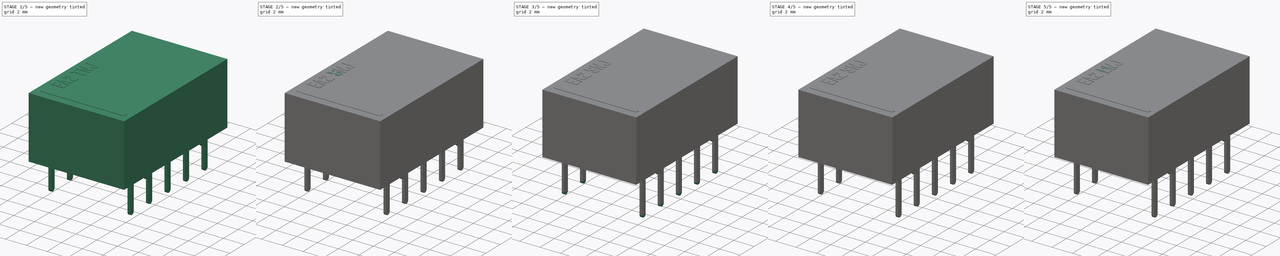
[diagram: build sequence overview — one tinted view per stage of 5, left to right]
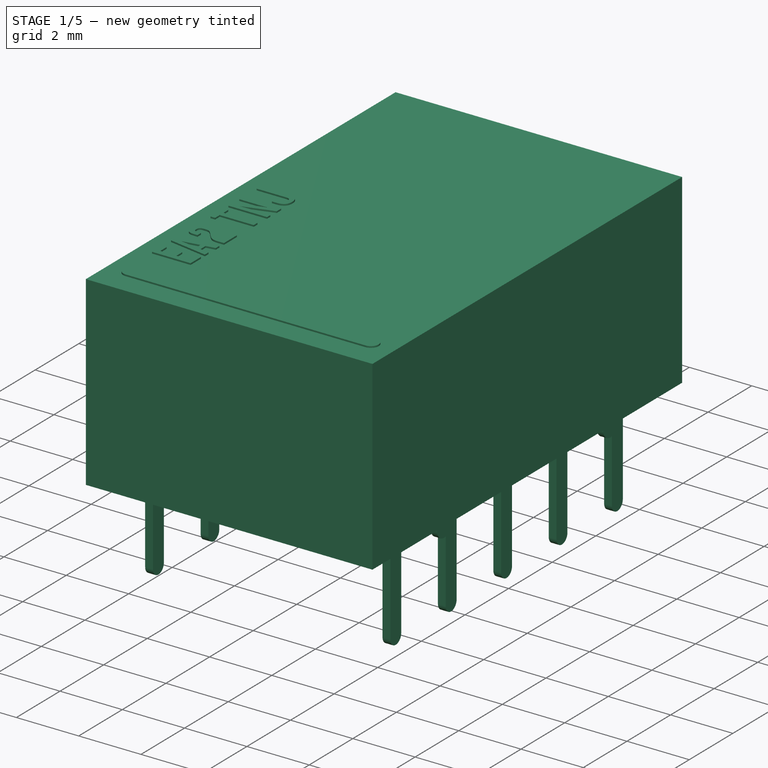
[diagram: stage 1 of 5 — iso view after this stage's code; geometry added in this stage tinted green]
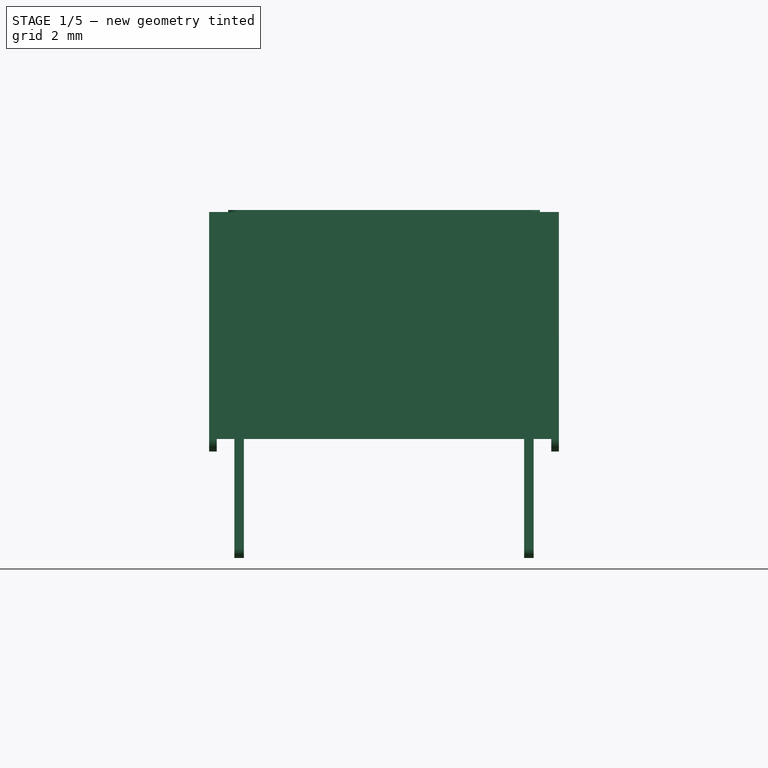
[diagram: stage 1 of 5 — front view after this stage's code; geometry added in this stage tinted green]
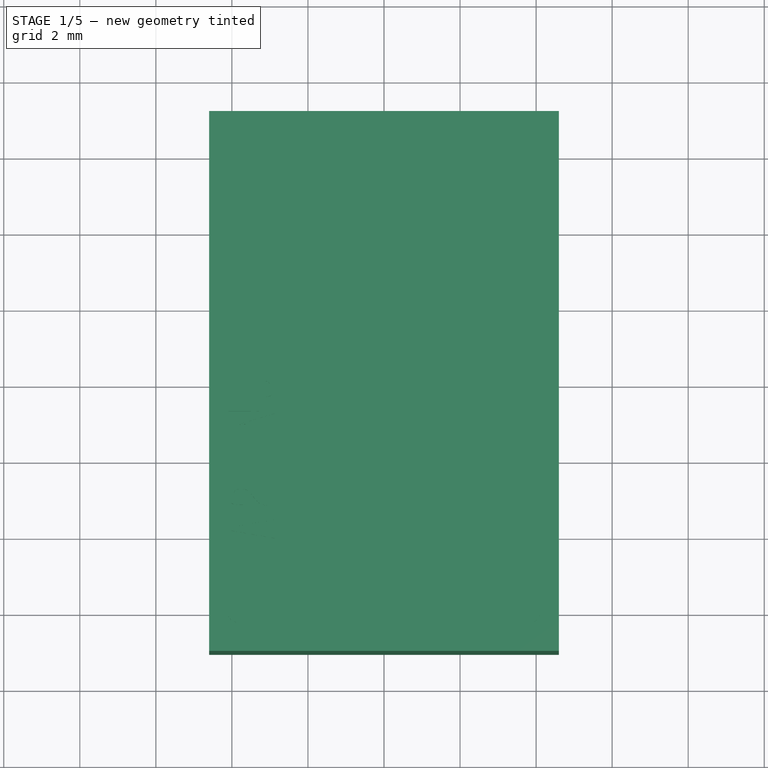
[diagram: stage 1 of 5 — top view after this stage's code; geometry added in this stage tinted green]
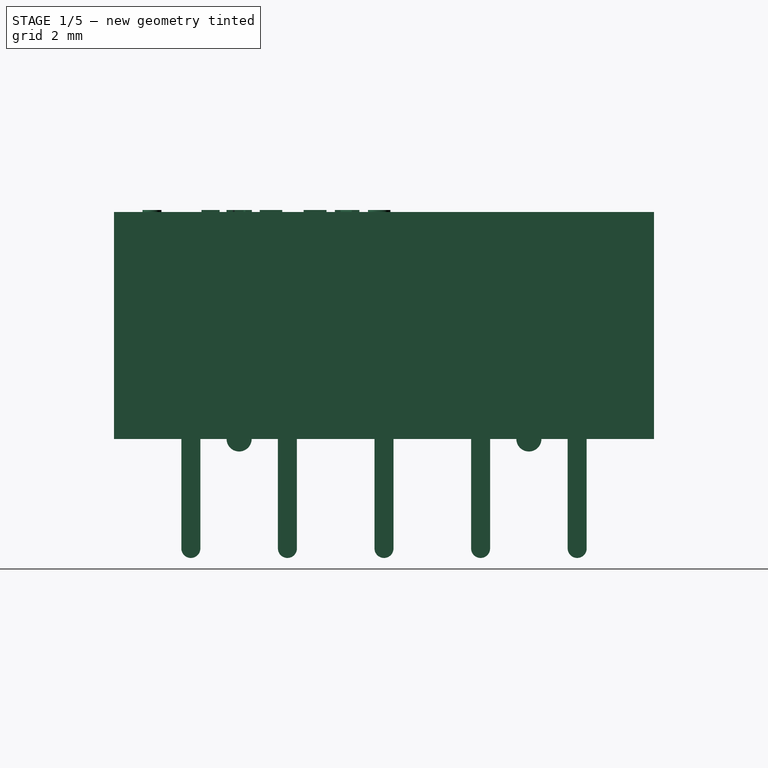
[diagram: stage 1 of 5 — right view after this stage's code; geometry added in this stage tinted green]
FCSTD DOCUMENT  (FreeCAD 0.19R16945 (Git))
Label: Kemet EA2 Series
License: All rights reserved
LicenseURL: http://en.wikipedia.org/wiki/All_rights_reserved
objects: Sketcher::SketchObject×42, PartDesign::Pad×36, PartDesign::Pocket×12, PartDesign::Mirrored×12, PartDesign::MultiTransform×6, Part::FeaturePython×6, Part::Part2DObjectPython×6, PartDesign::Body×6, App::Part×6
note: 174 computed .brp shape members not serialized (recipe doc carries the construction recipe); baked Part::Feature solids carry a one-line shape summary decoded from their .brp

FEATURE [PartDesign::Body] Body003  label="EA2-TNU_Body"
  Group = -> [Sketch025,Pad020,Sketch030,Pocket008,Sketch026,Pad022,MultiTransform003,Mirrored007,Mirrored006,Sketch031,Pocket009,Sketch027,Pad025,Sketch028,Pad023,ShapeString003,Pad024]
  Origin = -> Origin006
  Tip = -> Pad024
FEATURE [App::Part] Part003  label="EA2-TNU"
  Group = -> [Body003,Sketch029,Pad021,Array003]
  Origin = -> Origin007
FEATURE [PartDesign::Mirrored] Mirrored008
  MirrorPlane = -> YZ_Plane008
FEATURE [PartDesign::Mirrored] Mirrored009
  MirrorPlane = -> XZ_Plane008
FEATURE [Sketcher::SketchObject] Sketch035
  MapMode = 5
  Support = -> [XY_Plane008]
  sketch-geometry (4):
    g0: LineSegment StartX=4.6 StartY=-7.1 StartZ=0 EndX=-4.6 EndY=-7.1 EndZ=0
    g1: LineSegment StartX=-4.6 StartY=-7.1 StartZ=0 EndX=-4.6 EndY=7.1 EndZ=0
    g2: LineSegment StartX=-4.6 StartY=7.1 StartZ=0 EndX=4.6 EndY=7.1 EndZ=0
    g3: LineSegment StartX=4.6 StartY=7.1 StartZ=0 EndX=4.6 EndY=-7.1 EndZ=0
  constraints (10):
    c: Coincident(g0,g1)
    c: Coincident(g1,g2)
    c: Coincident(g2,g3)
    c: Coincident(g3,g0)
    c: Horizontal(g0)
    c: Vertical(g1)
    c: Symmetric(g1,g2,g-2)
    c: Symmetric(g2,g0,g-1)
    c: DistanceX(g2,g2) = 9.2
    c: DistanceY(g3,g3) = 14.2
FEATURE [PartDesign::Pad] Pad030  label="MainPad004"
  Length = 6.3
  Length2 = 100
  Profile = -> Sketch035
  Type = 0
FEATURE [Sketcher::SketchObject] Sketch037
  ExternalGeometry = -> [Pad030]
  MapMode = 5
  Placement = pos=(-4.6,0,0) rot=(0.57735,-0.57735,-0.57735;2.0944rad)
  Support = -> [Pad030]
  sketch-geometry (4):
    g0: LineSegment StartX=-7.1 StartY=0 StartZ=0 EndX=7.1 EndY=0 EndZ=0
    g1: LineSegment StartX=7.1 StartY=0 StartZ=0 EndX=7.1 EndY=0.33 EndZ=0
    g2: LineSegment StartX=7.1 StartY=0.33 StartZ=0 EndX=-7.1 EndY=0.33 EndZ=0
    g3: LineSegment StartX=-7.1 StartY=0.33 StartZ=0 EndX=-7.1 EndY=0 EndZ=0
  constraints (11):
    c: Coincident(g0,g1)
    c: Coincident(g1,g2)
    c: Coincident(g2,g3)
    c: Coincident(g3,g0)
    c: Horizontal(g0)
    c: Horizontal(g2)
    c: Vertical(g1)
    c: Vertical(g3)
    c: Coincident(g0,g-3)
    c: PointOnObject(g1,g-4)
    c: DistanceY(g1,g1) = 0.33
FEATURE [PartDesign::Pocket] Pocket010  label="BottomPocket008"
  BaseFeature = -> Pad030
  Length = 5
  Length2 = 100
  Profile = -> Sketch037
  Type = 1
FEATURE [PartDesign::Body] Body004  label="EA2-SNJ_Body"
  Group = -> [Sketch035,Pad030,Sketch037,Pocket010,Sketch032,Pad031,MultiTransform004,Mirrored008,Mirrored009,Sketch034,Pocket011,Sketch038,Pad028,Sketch033,Pad029,ShapeString004,Pad026]
  Origin = -> Origin008
  Tip = -> Pad026
FEATURE [App::Part] Part004  label="EA2-SNJ"
  Group = -> [Body004,Sketch036,Pad027,Array004]
  Origin = -> Origin009
FEATURE [PartDesign::Mirrored] Mirrored010
  MirrorPlane = -> XZ_Plane010
FEATURE [PartDesign::Mirrored] Mirrored011
  MirrorPlane = -> YZ_Plane010
FEATURE [Sketcher::SketchObject] Sketch040
  MapMode = 5
  Support = -> [XY_Plane010]
  sketch-geometry (4):
    g0: LineSegment StartX=4.6 StartY=-7.1 StartZ=0 EndX=-4.6 EndY=-7.1 EndZ=0
    g1: LineSegment StartX=-4.6 StartY=-7.1 StartZ=0 EndX=-4.6 EndY=7.1 EndZ=0
    g2: LineSegment StartX=-4.6 StartY=7.1 StartZ=0 EndX=4.6 EndY=7.1 EndZ=0
    g3: LineSegment StartX=4.6 StartY=7.1 StartZ=0 EndX=4.6 EndY=-7.1 EndZ=0
  constraints (10):
    c: Coincident(g0,g1)
    c: Coincident(g1,g2)
    c: Coincident(g2,g3)
    c: Coincident(g3,g0)
    c: Horizontal(g0)
    c: Vertical(g1)
    c: Symmetric(g1,g2,g-2)
    c: Symmetric(g2,g0,g-1)
    c: DistanceX(g2,g2) = 9.2
    c: DistanceY(g3,g3) = 14.2
FEATURE [PartDesign::Pad] Pad037  label="MainPad005"
  Length = 6.3
  Length2 = 100
  Profile = -> Sketch040
  Type = 0
FEATURE [Sketcher::SketchObject] Sketch043
  ExternalGeometry = -> [Pad037]
  MapMode = 5
  Placement = pos=(-4.6,0,0) rot=(0.57735,-0.57735,-0.57735;2.0944rad)
  Support = -> [Pad037]
  sketch-geometry (4):
    g0: LineSegment StartX=-7.1 StartY=0 StartZ=0 EndX=7.1 EndY=0 EndZ=0
    g1: LineSegment StartX=7.1 StartY=0 StartZ=0 EndX=7.1 EndY=0.33 EndZ=0
    g2: LineSegment StartX=7.1 StartY=0.33 StartZ=0 EndX=-7.1 EndY=0.33 EndZ=0
    g3: LineSegment StartX=-7.1 StartY=0.33 StartZ=0 EndX=-7.1 EndY=0 EndZ=0
  constraints (11):
    c: Coincident(g0,g1)
    c: Coincident(g1,g2)
    c: Coincident(g2,g3)
    c: Coincident(g3,g0)
    c: Horizontal(g0)
    c: Horizontal(g2)
    c: Vertical(g1)
    c: Vertical(g3)
    c: Coincident(g0,g-3)
    c: PointOnObject(g1,g-4)
    c: DistanceY(g1,g1) = 0.33
FEATURE [PartDesign::Pocket] Pocket012  label="BottomPocket010"
  BaseFeature = -> Pad037
  Length = 5
  Length2 = 100
  Profile = -> Sketch043
  Type = 1
FEATURE [Sketcher::SketchObject] Sketch039
  MapMode = 5
  Placement = pos=(-4.6,0,0) rot=(0.57735,-0.57735,-0.57735;2.0944rad)
  Support = -> [Pocket012]
  sketch-geometry (3):
    g0: LineSegment StartX=-4.14 StartY=0.33 StartZ=0 EndX=-3.48 EndY=0.33 EndZ=0
    g1: ArcOfCircle CenterX=-3.81 CenterY=0.33 CenterZ=0 NormalX=0 NormalY=0 NormalZ=1 AngleXU=0 Radius=0.33 StartAngle=3.14159 EndAngle=6.28319
    g2: GeomPoint X=-3.81 Y=0 Z=0
  constraints (9):
    c: Horizontal(g0)
    c: DistanceX(g0,g0) = 0.66
    c: Coincident(g1,g0)
    c: Coincident(g1,g0)
    c: PointOnObject(g2,g1)
    c: PointOnObject(g2,g-1)
    c: DistanceY(g2,g0) = 0.33
    c: Tangent(g1,g-1)
    c: DistanceX(g2,g-1) = 3.81
FEATURE [PartDesign::Pad] Pad032  label="StandoffPad005"
  BaseFeature = -> Pocket012
  Length = 0.2
  Length2 = 100
  Profile = -> Sketch039
  Refine = true
  Reversed = true
  Type = 0
FEATURE [PartDesign::MultiTransform] MultiTransform005  label="StandoffMultiTransform005"
  BaseFeature = -> Pad032
  Originals = -> [Pad032]
  Refine = true
  Transformations = -> [Mirrored011,Mirrored010]
FEATURE [Sketcher::SketchObject] Sketch042
  ExternalGeometry = -> [MultiTransform005]
  MapMode = 5
  Placement = pos=(0,0,0.33) rot=(1,0,0;3.14159rad)
  Support = -> [MultiTransform005]
  sketch-geometry (4):
    g0: LineSegment StartX=-4.4 StartY=6.9 StartZ=0 EndX=4.4 EndY=6.9 EndZ=0
    g1: LineSegment StartX=4.4 StartY=6.9 StartZ=0 EndX=4.4 EndY=-6.9 EndZ=0
    g2: LineSegment StartX=4.4 StartY=-6.9 StartZ=0 EndX=-4.4 EndY=-6.9 EndZ=0
    g3: LineSegment StartX=-4.4 StartY=-6.9 StartZ=0 EndX=-4.4 EndY=6.9 EndZ=0
  constraints (10):
    c: Coincident(g0,g1)
    c: Coincident(g1,g2)
    c: Coincident(g2,g3)
    c: Coincident(g3,g0)
    c: Horizontal(g2)
    c: Vertical(g3)
    c: Symmetric(g0,g0,g-2)
    c: Symmetric(g0,g1,g-1)
    c: DistanceX(g0,g-4) = 0.2
    c: DistanceY(g0,g-4) = 0.2
FEATURE [PartDesign::Pocket] Pocket013  label="BottomPocket011"
  BaseFeature = -> MultiTransform005
  Length = 0.1
  Length2 = 100
  Profile = -> Sketch042
  Type = 0
FEATURE [Sketcher::SketchObject] Sketch044
  AttachmentOffset = pos=(0,0,3.81) rot=(0,0,1;0rad)
  MapMode = 5
  Placement = pos=(3.81,-1e-15,1e-15) rot=(0.57735,0.57735,0.57735;2.0944rad)
  sketch-geometry (6):
    g0: ArcOfCircle CenterX=-5.08 CenterY=-2.55 CenterZ=0 NormalX=0 NormalY=0 NormalZ=1 AngleXU=0 Radius=0.25 StartAngle=3.14159 EndAngle=6.28319
    g1: LineSegment StartX=-5.33 StartY=-2.55 StartZ=0 EndX=-5.33 EndY=0.33 EndZ=0
    g2: LineSegment StartX=-5.33 StartY=0.33 StartZ=0 EndX=-4.83 EndY=0.33 EndZ=0
    g3: LineSegment StartX=-4.83 StartY=0.33 StartZ=0 EndX=-4.83 EndY=-2.55 EndZ=0
    g4: GeomPoint X=-5.33 Y=0 Z=0
    g5: GeomPoint X=-5.08 Y=-2.8 Z=0
  constraints (16):
    c: Tangent(g0,g1) = 1.5708
    c: Coincident(g1,g2)
    c: Coincident(g2,g3)
    c: Coincident(g3,g0)
    c: Vertical(g3)
    c: Equal(g3,g1)
    c: Vertical(g1)
    c: Horizontal(g2)
    c: PointOnObject(g4,g1)
    c: PointOnObject(g4,g-1)
    c: DistanceY(g4,g1) = 0.33
    c: DistanceX(g0,g0) = 0.5
    c: DistanceX(g0,g-1) = 5.08
    c: PointOnObject(g5,g0)
    c: Vertical(g5,g0)
    c: DistanceY(g5,g-1) = 2.8
FEATURE [PartDesign::Pad] Pad035
  Length = 0.25
  Length2 = 100
  Midplane = true
  Placement = pos=(3.81,-1e-15,1e-15) rot=(0.57735,0.57735,0.57735;2.0944rad)
  Profile = -> Sketch044
  Reversed = true
  Type = 0
FEATURE [Part::FeaturePython] Array005  label="EA2-TNJ_Pins"  # Draft array (typed FeaturePython)
  Angle = 360
  ArrayType = 0
  Axis = (0,0,1)
  Base = -> Pad035
  Center = (0,0,0)
  Fuse = false
  IntervalAxis = (0,0,0)
  IntervalX = (-7.62,0,0)
  IntervalY = (0,2.54,0)
  IntervalZ = (0,0,1)
  NumberPolar = 1
  NumberX = 2
  NumberY = 5
  NumberZ = 1
FEATURE [Sketcher::SketchObject] Sketch045
  MapMode = 5
  Placement = pos=(0,0,0.43) rot=(1,0,0;3.14159rad)
  Support = -> [Pocket013]
  sketch-geometry (8):
    g0: LineSegment StartX=-1.8547 StartY=5.55085 StartZ=0 EndX=1.8547 EndY=5.55085 EndZ=0
    g1: LineSegment StartX=2.79274 StartY=4.61281 StartZ=0 EndX=2.79274 EndY=-4.61281 EndZ=0
    g2: LineSegment StartX=1.8547 StartY=-5.55085 StartZ=0 EndX=-1.8547 EndY=-5.55085 EndZ=0
    g3: LineSegment StartX=-2.79274 StartY=-4.61281 StartZ=0 EndX=-2.79274 EndY=4.61281 EndZ=0
    g4: ArcOfCircle CenterX=-1.8547 CenterY=4.61281 CenterZ=0 NormalX=0 NormalY=0 NormalZ=1 AngleXU=0 Radius=0.938044 StartAngle=1.5708 EndAngle=3.14159
    g5: ArcOfCircle CenterX=1.8547 CenterY=4.61281 CenterZ=0 NormalX=0 NormalY=0 NormalZ=1 AngleXU=0 Radius=0.938044 StartAngle=0 EndAngle=1.5708
    g6: ArcOfCircle CenterX=1.8547 CenterY=-4.61281 CenterZ=0 NormalX=0 NormalY=0 NormalZ=1 AngleXU=0 Radius=0.938044 StartAngle=4.71239 EndAngle=6.28319
    g7: ArcOfCircle CenterX=-1.8547 CenterY=-4.61281 CenterZ=0 NormalX=0 NormalY=0 NormalZ=1 AngleXU=0 Radius=0.938044 StartAngle=3.14159 EndAngle=4.71239
  constraints (15):
    c: Horizontal(g0)
    c: Horizontal(g2)
    c: Vertical(g1)
    c: Vertical(g3)
    c: Tangent(g0,g4) = 1.5708
    c: Tangent(g3,g4) = 1.5708
    c: Tangent(g0,g5) = 1.5708
    c: Tangent(g1,g5) = 1.5708
    c: Tangent(g1,g6) = 1.5708
    c: Tangent(g2,g6) = 1.5708
    c: Tangent(g2,g7) = 1.5708
    c: Tangent(g3,g7) = 1.5708
    c: Equal(g7,g6)
    c: Symmetric(g3,g1,g-2)
    c: Symmetric(g0,g2,g-1)
FEATURE [PartDesign::Pad] Pad034  label="BottomPad005"
  BaseFeature = -> Pocket013
  Length = 0.05
  Length2 = 100
  Profile = -> Sketch045
  Type = 0
FEATURE [Sketcher::SketchObject] Sketch041
  ExternalGeometry = -> [Pad034]
  MapMode = 5
  Placement = pos=(0,0,6.3) rot=(0,0,1;0rad)
  Support = -> [Pad034]
  sketch-geometry (4):
    g0: ArcOfCircle CenterX=-3.85 CenterY=-6.1 CenterZ=0 NormalX=0 NormalY=0 NormalZ=1 AngleXU=0 Radius=0.25 StartAngle=1.5708 EndAngle=4.71239
    g1: ArcOfCircle CenterX=3.85 CenterY=-6.1 CenterZ=0 NormalX=0 NormalY=0 NormalZ=1 AngleXU=0 Radius=0.25 StartAngle=4.71239 EndAngle=7.85398
    g2: LineSegment StartX=-3.85 StartY=-6.35 StartZ=0 EndX=3.85 EndY=-6.35 EndZ=0
    g3: LineSegment StartX=-3.85 StartY=-5.85 StartZ=0 EndX=3.85 EndY=-5.85 EndZ=0
  constraints (9):
    c: Tangent(g0,g3) = 1.5708
    c: Tangent(g0,g2) = -1.5708
    c: Tangent(g2,g1) = -1.5708
    c: Tangent(g3,g1) = 1.5708
    c: Horizontal(g2)
    c: Symmetric(g1,g0,g-2)
    c: DistanceY(g1,g1) = 0.5
    c: DistanceY(g-3,g0) = 1
    c: DistanceX(g-3,g0) = 0.75
FEATURE [PartDesign::Pad] Pad036  label="CoilMarkingPad005"
  BaseFeature = -> Pad034
  Length = 0.05
  Length2 = 100
  Profile = -> Sketch041
  Type = 0
FEATURE [Part::Part2DObjectPython] ShapeString005  # Draft 2D object (typed FeaturePython)
  AttachmentOffset = pos=(-1,-1,0) rot=(0,0,-1;1.5708rad)
  FontFile = <userpath>/Desktop/GitHub/freecad-projects/00-fonts/coolvetica condensed rg.ttf
  MapMode = 6
  Placement = pos=(-2.85,-4.85,6.3) rot=(0,0,1;1.5708rad)
  Size = 0.75
  String = EA2 TNJ
  Support = -> [Pad036]
  Tracking = 0.125
FEATURE [PartDesign::Pad] Pad033  label="ShapeStringPad005"
  BaseFeature = -> Pad036
  Length = 0.05
  Length2 = 100
  Profile = -> ShapeString005
  Type = 0
FEATURE [PartDesign::Body] Body005  label="EA2-TNJ_Body"
  Group = -> [Sketch040,Pad037,Sketch043,Pocket012,Sketch039,Pad032,MultiTransform005,Mirrored011,Mirrored010,Sketch042,Pocket013,Sketch045,Pad034,Sketch041,Pad036,ShapeString005,Pad033]
  Origin = -> Origin010
  Tip = -> Pad033
FEATURE [App::Part] Part005  label="EA2-TNJ"
  Group = -> [Body005,Sketch044,Pad035,Array005]
  Origin = -> Origin011
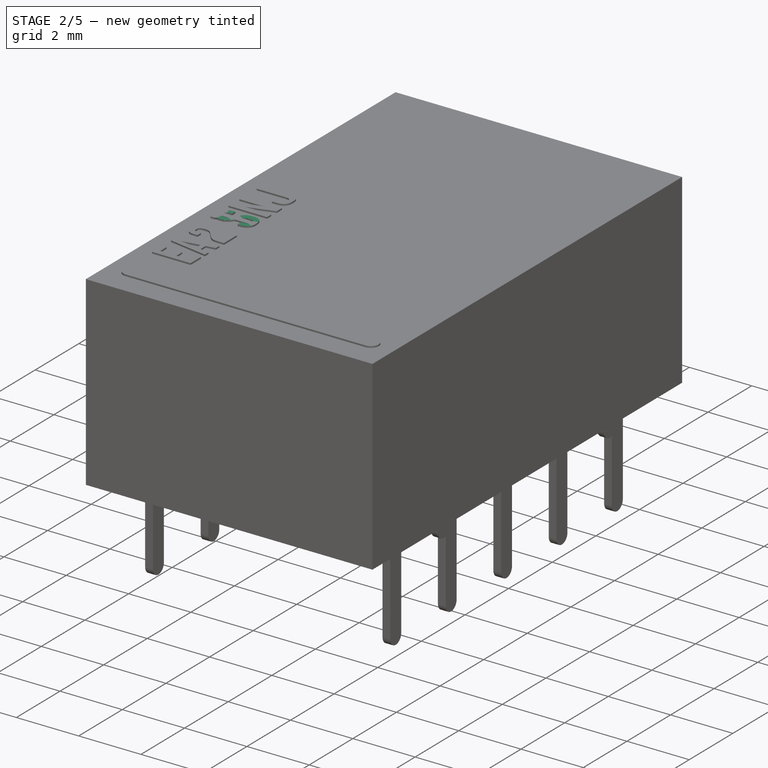
[diagram: stage 2 of 5 — iso view after this stage's code; geometry added in this stage tinted green]
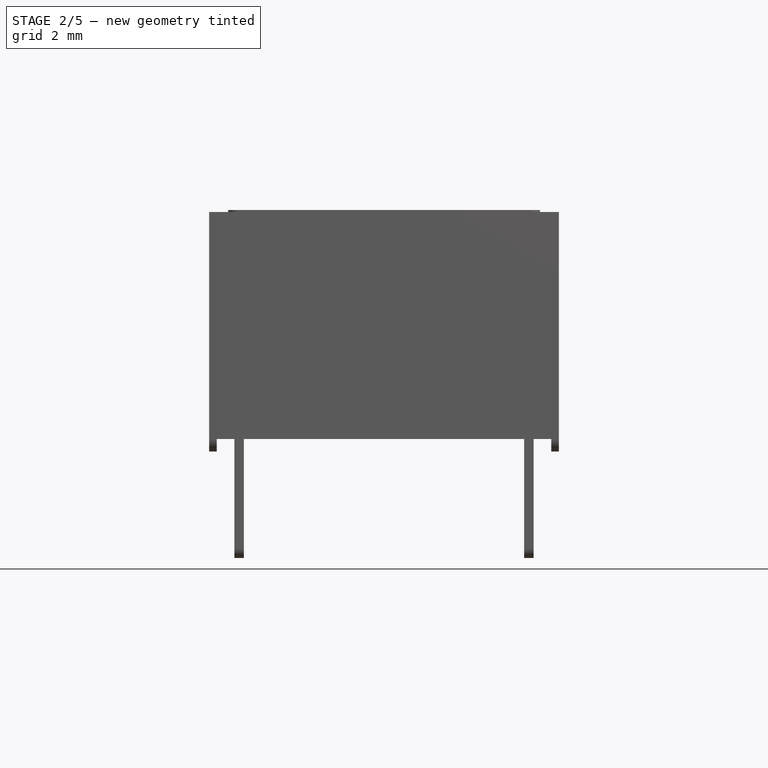
[diagram: stage 2 of 5 — front view after this stage's code; geometry added in this stage tinted green]
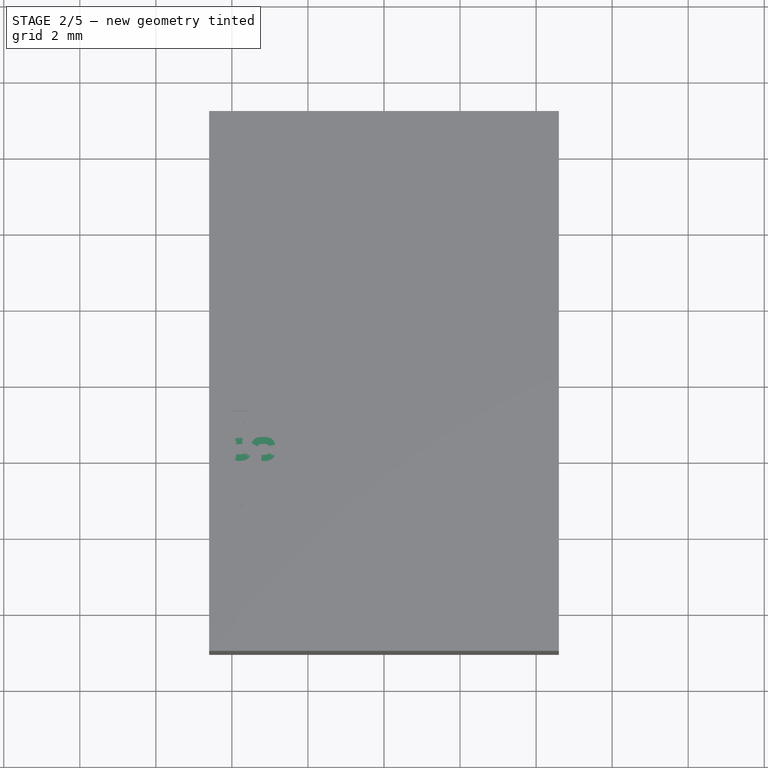
[diagram: stage 2 of 5 — top view after this stage's code; geometry added in this stage tinted green]
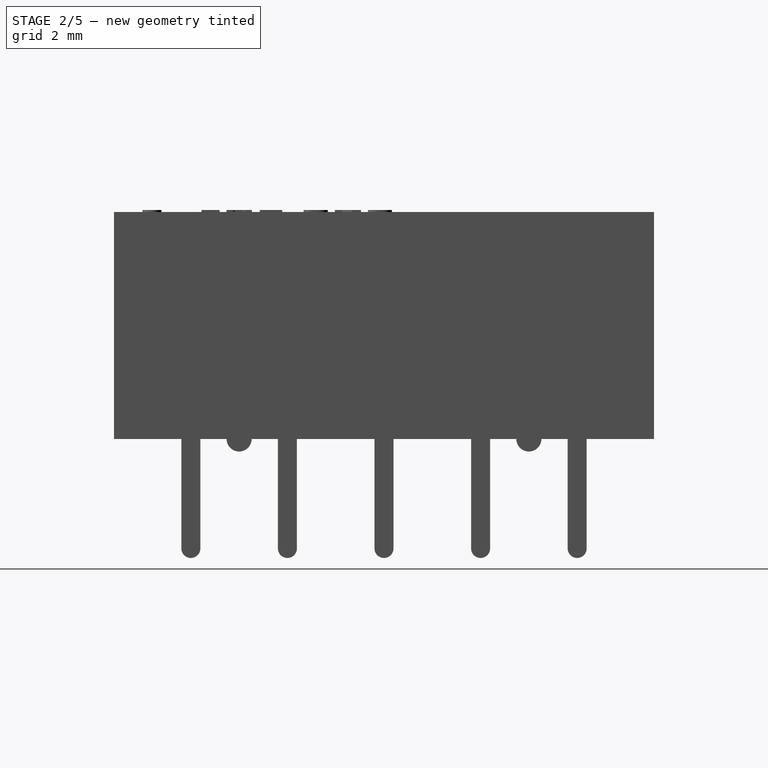
[diagram: stage 2 of 5 — right view after this stage's code; geometry added in this stage tinted green]
FEATURE [PartDesign::Body] Body002  label="EA2-SNU_Body"
  Group = -> [Sketch018,Pad014,Sketch023,Pocket006,Sketch019,Pad016,MultiTransform002,Mirrored005,Mirrored004,Sketch024,Pocket007,Sketch020,Pad019,Sketch021,Pad017,ShapeString002,Pad018]
  Origin = -> Origin004
  Tip = -> Pad018
FEATURE [App::Part] Part002  label="EA2-SNU"
  Group = -> [Body002,Sketch022,Pad015,Array002]
  Origin = -> Origin005
FEATURE [Sketcher::SketchObject] Sketch025
  MapMode = 5
  Support = -> [XY_Plane007]
  sketch-geometry (4):
    g0: LineSegment StartX=4.6 StartY=-7.1 StartZ=0 EndX=-4.6 EndY=-7.1 EndZ=0
    g1: LineSegment StartX=-4.6 StartY=-7.1 StartZ=0 EndX=-4.6 EndY=7.1 EndZ=0
    g2: LineSegment StartX=-4.6 StartY=7.1 StartZ=0 EndX=4.6 EndY=7.1 EndZ=0
    g3: LineSegment StartX=4.6 StartY=7.1 StartZ=0 EndX=4.6 EndY=-7.1 EndZ=0
  constraints (10):
    c: Coincident(g0,g1)
    c: Coincident(g1,g2)
    c: Coincident(g2,g3)
    c: Coincident(g3,g0)
    c: Horizontal(g0)
    c: Vertical(g1)
    c: Symmetric(g1,g2,g-2)
    c: Symmetric(g2,g0,g-1)
    c: DistanceX(g2,g2) = 9.2
    c: DistanceY(g3,g3) = 14.2
FEATURE [PartDesign::Pad] Pad020  label="MainPad003"
  Length = 5.4
  Length2 = 100
  Profile = -> Sketch025
  Type = 0
FEATURE [Sketcher::SketchObject] Sketch030
  ExternalGeometry = -> [Pad020]
  MapMode = 5
  Placement = pos=(-4.6,0,0) rot=(0.57735,-0.57735,-0.57735;2.0944rad)
  Support = -> [Pad020]
  sketch-geometry (4):
    g0: LineSegment StartX=-7.1 StartY=0 StartZ=0 EndX=7.1 EndY=0 EndZ=0
    g1: LineSegment StartX=7.1 StartY=0 StartZ=0 EndX=7.1 EndY=0.33 EndZ=0
    g2: LineSegment StartX=7.1 StartY=0.33 StartZ=0 EndX=-7.1 EndY=0.33 EndZ=0
    g3: LineSegment StartX=-7.1 StartY=0.33 StartZ=0 EndX=-7.1 EndY=0 EndZ=0
  constraints (11):
    c: Coincident(g0,g1)
    c: Coincident(g1,g2)
    c: Coincident(g2,g3)
    c: Coincident(g3,g0)
    c: Horizontal(g0)
    c: Horizontal(g2)
    c: Vertical(g1)
    c: Vertical(g3)
    c: Coincident(g0,g-3)
    c: PointOnObject(g1,g-4)
    c: DistanceY(g1,g1) = 0.33
FEATURE [PartDesign::Pocket] Pocket008  label="BottomPocket006"
  BaseFeature = -> Pad020
  Length = 5
  Length2 = 100
  Profile = -> Sketch030
  Type = 1
FEATURE [Sketcher::SketchObject] Sketch026
  MapMode = 5
  Placement = pos=(-4.6,0,0) rot=(0.57735,-0.57735,-0.57735;2.0944rad)
  Support = -> [Pocket008]
  sketch-geometry (3):
    g0: LineSegment StartX=-4.14 StartY=0.33 StartZ=0 EndX=-3.48 EndY=0.33 EndZ=0
    g1: ArcOfCircle CenterX=-3.81 CenterY=0.33 CenterZ=0 NormalX=0 NormalY=0 NormalZ=1 AngleXU=0 Radius=0.33 StartAngle=3.14159 EndAngle=6.28319
    g2: GeomPoint X=-3.81 Y=0 Z=0
  constraints (9):
    c: Horizontal(g0)
    c: DistanceX(g0,g0) = 0.66
    c: Coincident(g1,g0)
    c: Coincident(g1,g0)
    c: PointOnObject(g2,g1)
    c: PointOnObject(g2,g-1)
    c: DistanceY(g2,g0) = 0.33
    c: Tangent(g1,g-1)
    c: DistanceX(g2,g-1) = 3.81
FEATURE [PartDesign::Pad] Pad022  label="StandoffPad003"
  BaseFeature = -> Pocket008
  Length = 0.2
  Length2 = 100
  Profile = -> Sketch026
  Refine = true
  Reversed = true
  Type = 0
FEATURE [PartDesign::Mirrored] Mirrored006
  MirrorPlane = -> XZ_Plane007
FEATURE [PartDesign::Mirrored] Mirrored007
  MirrorPlane = -> YZ_Plane006
FEATURE [PartDesign::MultiTransform] MultiTransform003  label="StandoffMultiTransform003"
  BaseFeature = -> Pad022
  Originals = -> [Pad022]
  Refine = true
  Transformations = -> [Mirrored007,Mirrored006]
FEATURE [Sketcher::SketchObject] Sketch036
  AttachmentOffset = pos=(0,0,3.81) rot=(0,0,1;0rad)
  MapMode = 5
  Placement = pos=(3.81,-1e-15,1e-15) rot=(0.57735,0.57735,0.57735;2.0944rad)
  sketch-geometry (6):
    g0: ArcOfCircle CenterX=-5.08 CenterY=-2.55 CenterZ=0 NormalX=0 NormalY=0 NormalZ=1 AngleXU=0 Radius=0.25 StartAngle=3.14159 EndAngle=6.28319
    g1: LineSegment StartX=-5.33 StartY=-2.55 StartZ=0 EndX=-5.33 EndY=0.33 EndZ=0
    g2: LineSegment StartX=-5.33 StartY=0.33 StartZ=0 EndX=-4.83 EndY=0.33 EndZ=0
    g3: LineSegment StartX=-4.83 StartY=0.33 StartZ=0 EndX=-4.83 EndY=-2.55 EndZ=0
    g4: GeomPoint X=-5.33 Y=0 Z=0
    g5: GeomPoint X=-5.08 Y=-2.8 Z=0
  constraints (16):
    c: Tangent(g0,g1) = 1.5708
    c: Coincident(g1,g2)
    c: Coincident(g2,g3)
    c: Coincident(g3,g0)
    c: Vertical(g3)
    c: Equal(g3,g1)
    c: Vertical(g1)
    c: Horizontal(g2)
    c: PointOnObject(g4,g1)
    c: PointOnObject(g4,g-1)
    c: DistanceY(g4,g1) = 0.33
    c: DistanceX(g0,g0) = 0.5
    c: DistanceX(g0,g-1) = 5.08
    c: PointOnObject(g5,g0)
    c: Vertical(g5,g0)
    c: DistanceY(g5,g-1) = 2.8
FEATURE [PartDesign::Pad] Pad027
  Length = 0.25
  Length2 = 100
  Midplane = true
  Placement = pos=(3.81,-1e-15,1e-15) rot=(0.57735,0.57735,0.57735;2.0944rad)
  Profile = -> Sketch036
  Reversed = true
  Type = 0
FEATURE [Part::FeaturePython] Array004  label="EA2-SNJ_Pins"  # Draft array (typed FeaturePython)
  Angle = 360
  ArrayType = 0
  Axis = (0,0,1)
  Base = -> Pad027
  Center = (0,0,0)
  Fuse = false
  IntervalAxis = (0,0,0)
  IntervalX = (-7.62,0,0)
  IntervalY = (0,2.54,0)
  IntervalZ = (0,0,1)
  NumberPolar = 1
  NumberX = 2
  NumberY = 5
  NumberZ = 1
FEATURE [Sketcher::SketchObject] Sketch032
  MapMode = 5
  Placement = pos=(-4.6,0,0) rot=(0.57735,-0.57735,-0.57735;2.0944rad)
  Support = -> [Pocket010]
  sketch-geometry (3):
    g0: LineSegment StartX=-4.14 StartY=0.33 StartZ=0 EndX=-3.48 EndY=0.33 EndZ=0
    g1: ArcOfCircle CenterX=-3.81 CenterY=0.33 CenterZ=0 NormalX=0 NormalY=0 NormalZ=1 AngleXU=0 Radius=0.33 StartAngle=3.14159 EndAngle=6.28319
    g2: GeomPoint X=-3.81 Y=0 Z=0
  constraints (9):
    c: Horizontal(g0)
    c: DistanceX(g0,g0) = 0.66
    c: Coincident(g1,g0)
    c: Coincident(g1,g0)
    c: PointOnObject(g2,g1)
    c: PointOnObject(g2,g-1)
    c: DistanceY(g2,g0) = 0.33
    c: Tangent(g1,g-1)
    c: DistanceX(g2,g-1) = 3.81
FEATURE [PartDesign::Pad] Pad031  label="StandoffPad004"
  BaseFeature = -> Pocket010
  Length = 0.2
  Length2 = 100
  Profile = -> Sketch032
  Refine = true
  Reversed = true
  Type = 0
FEATURE [PartDesign::MultiTransform] MultiTransform004  label="StandoffMultiTransform004"
  BaseFeature = -> Pad031
  Originals = -> [Pad031]
  Refine = true
  Transformations = -> [Mirrored008,Mirrored009]
FEATURE [Sketcher::SketchObject] Sketch034
  ExternalGeometry = -> [MultiTransform004]
  MapMode = 5
  Placement = pos=(0,0,0.33) rot=(1,0,0;3.14159rad)
  Support = -> [MultiTransform004]
  sketch-geometry (4):
    g0: LineSegment StartX=-4.4 StartY=6.9 StartZ=0 EndX=4.4 EndY=6.9 EndZ=0
    g1: LineSegment StartX=4.4 StartY=6.9 StartZ=0 EndX=4.4 EndY=-6.9 EndZ=0
    g2: LineSegment StartX=4.4 StartY=-6.9 StartZ=0 EndX=-4.4 EndY=-6.9 EndZ=0
    g3: LineSegment StartX=-4.4 StartY=-6.9 StartZ=0 EndX=-4.4 EndY=6.9 EndZ=0
  constraints (10):
    c: Coincident(g0,g1)
    c: Coincident(g1,g2)
    c: Coincident(g2,g3)
    c: Coincident(g3,g0)
    c: Horizontal(g2)
    c: Vertical(g3)
    c: Symmetric(g0,g0,g-2)
    c: Symmetric(g0,g1,g-1)
    c: DistanceX(g0,g-4) = 0.2
    c: DistanceY(g0,g-4) = 0.2
FEATURE [PartDesign::Pocket] Pocket011  label="BottomPocket009"
  BaseFeature = -> MultiTransform004
  Length = 0.1
  Length2 = 100
  Profile = -> Sketch034
  Type = 0
FEATURE [Sketcher::SketchObject] Sketch038
  MapMode = 5
  Placement = pos=(0,0,0.43) rot=(1,0,0;3.14159rad)
  Support = -> [Pocket011]
  sketch-geometry (8):
    g0: LineSegment StartX=-1.8547 StartY=5.55085 StartZ=0 EndX=1.8547 EndY=5.55085 EndZ=0
    g1: LineSegment StartX=2.79274 StartY=4.61281 StartZ=0 EndX=2.79274 EndY=-4.61281 EndZ=0
    g2: LineSegment StartX=1.8547 StartY=-5.55085 StartZ=0 EndX=-1.8547 EndY=-5.55085 EndZ=0
    g3: LineSegment StartX=-2.79274 StartY=-4.61281 StartZ=0 EndX=-2.79274 EndY=4.61281 EndZ=0
    g4: ArcOfCircle CenterX=-1.8547 CenterY=4.61281 CenterZ=0 NormalX=0 NormalY=0 NormalZ=1 AngleXU=0 Radius=0.938044 StartAngle=1.5708 EndAngle=3.14159
    g5: ArcOfCircle CenterX=1.8547 CenterY=4.61281 CenterZ=0 NormalX=0 NormalY=0 NormalZ=1 AngleXU=0 Radius=0.938044 StartAngle=0 EndAngle=1.5708
    g6: ArcOfCircle CenterX=1.8547 CenterY=-4.61281 CenterZ=0 NormalX=0 NormalY=0 NormalZ=1 AngleXU=0 Radius=0.938044 StartAngle=4.71239 EndAngle=6.28319
    g7: ArcOfCircle CenterX=-1.8547 CenterY=-4.61281 CenterZ=0 NormalX=0 NormalY=0 NormalZ=1 AngleXU=0 Radius=0.938044 StartAngle=3.14159 EndAngle=4.71239
  constraints (15):
    c: Horizontal(g0)
    c: Horizontal(g2)
    c: Vertical(g1)
    c: Vertical(g3)
    c: Tangent(g0,g4) = 1.5708
    c: Tangent(g3,g4) = 1.5708
    c: Tangent(g0,g5) = 1.5708
    c: Tangent(g1,g5) = 1.5708
    c: Tangent(g1,g6) = 1.5708
    c: Tangent(g2,g6) = 1.5708
    c: Tangent(g2,g7) = 1.5708
    c: Tangent(g3,g7) = 1.5708
    c: Equal(g7,g6)
    c: Symmetric(g3,g1,g-2)
    c: Symmetric(g0,g2,g-1)
FEATURE [PartDesign::Pad] Pad028  label="BottomPad004"
  BaseFeature = -> Pocket011
  Length = 0.05
  Length2 = 100
  Profile = -> Sketch038
  Type = 0
FEATURE [Sketcher::SketchObject] Sketch033
  ExternalGeometry = -> [Pad028]
  MapMode = 5
  Placement = pos=(0,0,6.3) rot=(0,0,1;0rad)
  Support = -> [Pad028]
  sketch-geometry (4):
    g0: ArcOfCircle CenterX=-3.85 CenterY=-6.1 CenterZ=0 NormalX=0 NormalY=0 NormalZ=1 AngleXU=0 Radius=0.25 StartAngle=1.5708 EndAngle=4.71239
    g1: ArcOfCircle CenterX=3.85 CenterY=-6.1 CenterZ=0 NormalX=0 NormalY=0 NormalZ=1 AngleXU=0 Radius=0.25 StartAngle=4.71239 EndAngle=7.85398
    g2: LineSegment StartX=-3.85 StartY=-6.35 StartZ=0 EndX=3.85 EndY=-6.35 EndZ=0
    g3: LineSegment StartX=-3.85 StartY=-5.85 StartZ=0 EndX=3.85 EndY=-5.85 EndZ=0
  constraints (9):
    c: Tangent(g0,g3) = 1.5708
    c: Tangent(g0,g2) = -1.5708
    c: Tangent(g2,g1) = -1.5708
    c: Tangent(g3,g1) = 1.5708
    c: Horizontal(g2)
    c: Symmetric(g1,g0,g-2)
    c: DistanceY(g1,g1) = 0.5
    c: DistanceY(g-3,g0) = 1
    c: DistanceX(g-3,g0) = 0.75
FEATURE [PartDesign::Pad] Pad029  label="CoilMarkingPad004"
  BaseFeature = -> Pad028
  Length = 0.05
  Length2 = 100
  Profile = -> Sketch033
  Type = 0
FEATURE [Part::Part2DObjectPython] ShapeString004  # Draft 2D object (typed FeaturePython)
  AttachmentOffset = pos=(-1,-1,0) rot=(0,0,-1;1.5708rad)
  FontFile = <userpath>/Desktop/GitHub/freecad-projects/00-fonts/coolvetica condensed rg.ttf
  MapMode = 6
  Placement = pos=(-2.85,-4.85,6.3) rot=(0,0,1;1.5708rad)
  Size = 0.75
  String = EA2 SNJ
  Support = -> [Pad029]
  Tracking = 0.125
FEATURE [PartDesign::Pad] Pad026  label="ShapeStringPad004"
  BaseFeature = -> Pad029
  Length = 0.05
  Length2 = 100
  Profile = -> ShapeString004
  Type = 0
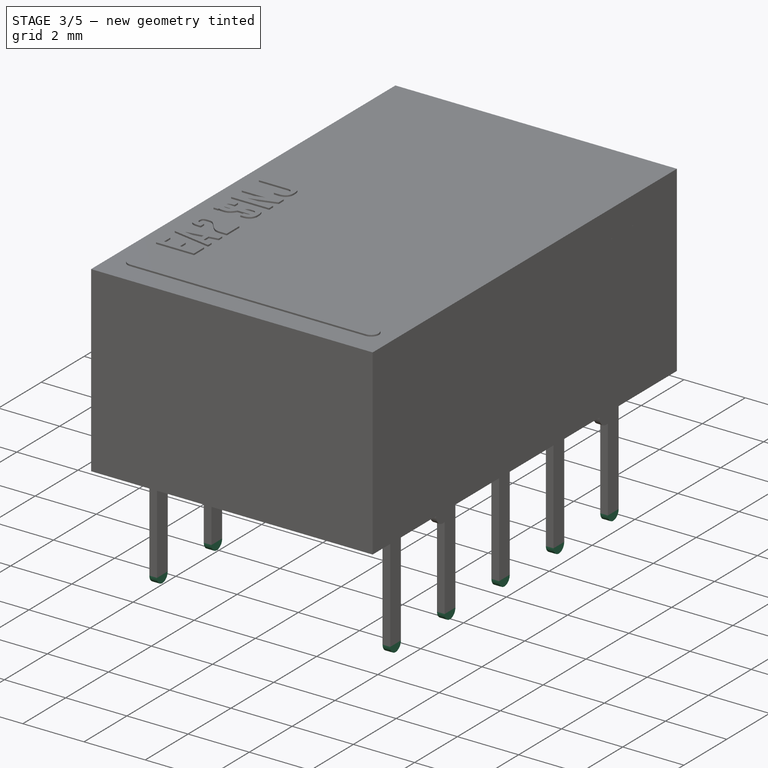
[diagram: stage 3 of 5 — iso view after this stage's code; geometry added in this stage tinted green]
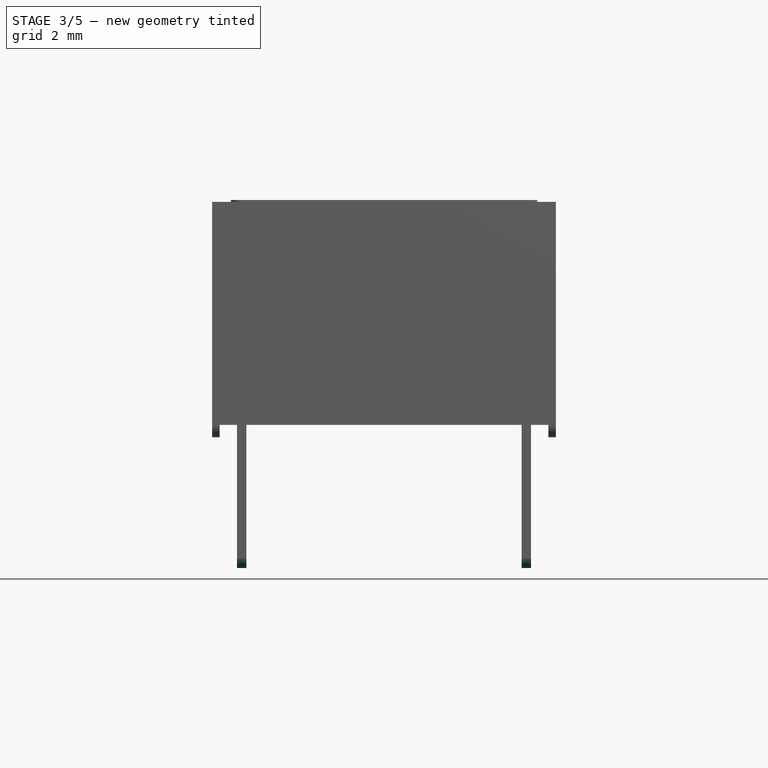
[diagram: stage 3 of 5 — front view after this stage's code; geometry added in this stage tinted green]
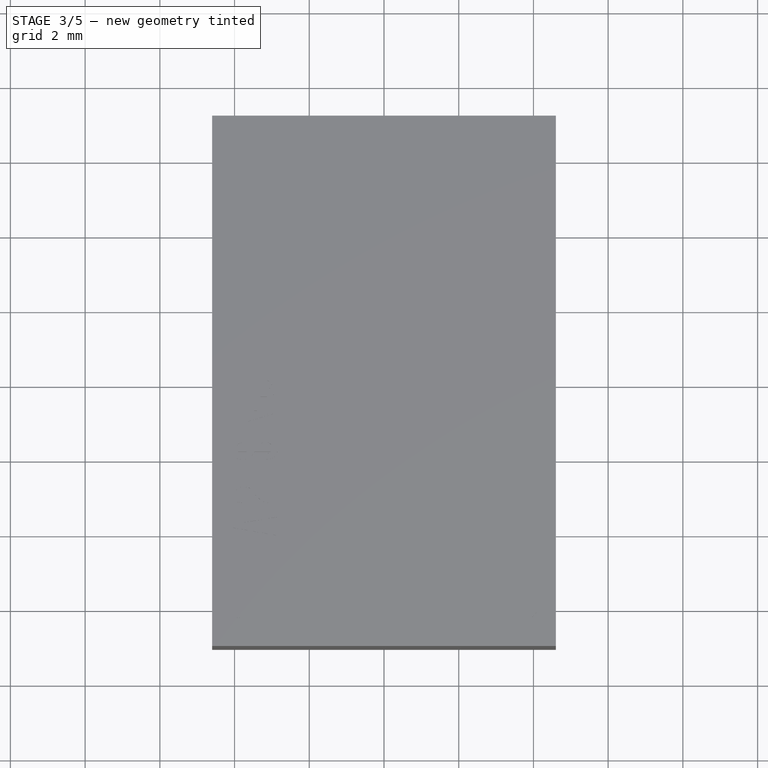
[diagram: stage 3 of 5 — top view after this stage's code; geometry added in this stage tinted green]
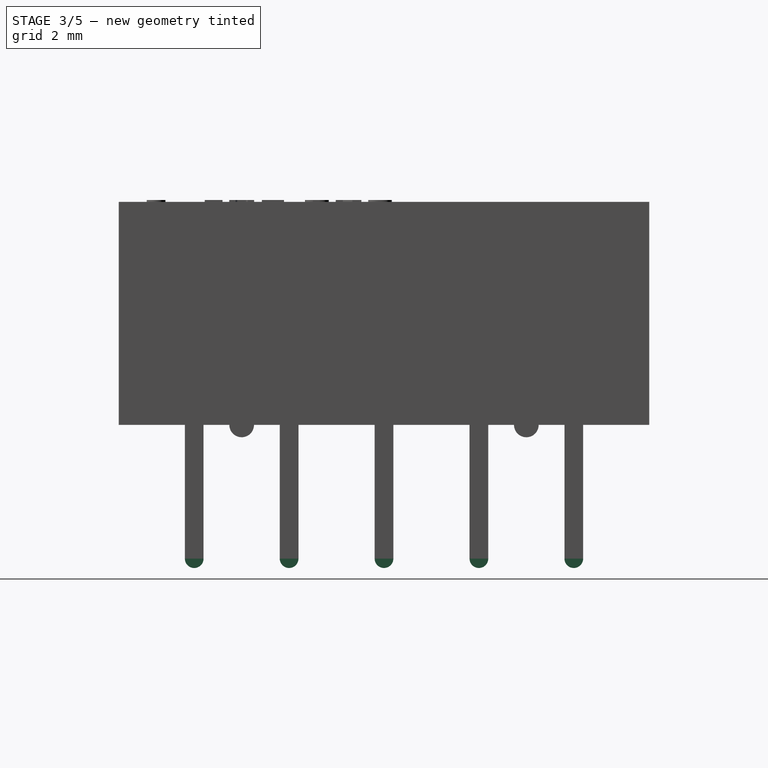
[diagram: stage 3 of 5 — right view after this stage's code; geometry added in this stage tinted green]
FEATURE [PartDesign::Body] Body001  label="EA2-NJ_Body"
  Group = -> [Sketch013,Pad009,Sketch014,Pocket004,Sketch011,Pad013,MultiTransform001,Mirrored003,Mirrored002,Sketch012,Pocket005,Sketch017,Pad011,Sketch016,Pad012,ShapeString001,Pad008]
  Origin = -> Origin003
  Tip = -> Pad008
FEATURE [App::Part] Part001  label="EA2-NJ"
  Group = -> [Body001,Sketch015,Pad010,Array001]
  Origin = -> Origin002
FEATURE [Sketcher::SketchObject] Sketch018
  MapMode = 5
  Support = -> [XY_Plane005]
  sketch-geometry (4):
    g0: LineSegment StartX=4.6 StartY=-7.1 StartZ=0 EndX=-4.6 EndY=-7.1 EndZ=0
    g1: LineSegment StartX=-4.6 StartY=-7.1 StartZ=0 EndX=-4.6 EndY=7.1 EndZ=0
    g2: LineSegment StartX=-4.6 StartY=7.1 StartZ=0 EndX=4.6 EndY=7.1 EndZ=0
    g3: LineSegment StartX=4.6 StartY=7.1 StartZ=0 EndX=4.6 EndY=-7.1 EndZ=0
  constraints (10):
    c: Coincident(g0,g1)
    c: Coincident(g1,g2)
    c: Coincident(g2,g3)
    c: Coincident(g3,g0)
    c: Horizontal(g0)
    c: Vertical(g1)
    c: Symmetric(g1,g2,g-2)
    c: Symmetric(g2,g0,g-1)
    c: DistanceX(g2,g2) = 9.2
    c: DistanceY(g3,g3) = 14.2
FEATURE [PartDesign::Pad] Pad014  label="MainPad002"
  Length = 5.4
  Length2 = 100
  Profile = -> Sketch018
  Type = 0
FEATURE [Sketcher::SketchObject] Sketch023
  ExternalGeometry = -> [Pad014]
  MapMode = 5
  Placement = pos=(-4.6,0,0) rot=(0.57735,-0.57735,-0.57735;2.0944rad)
  Support = -> [Pad014]
  sketch-geometry (4):
    g0: LineSegment StartX=-7.1 StartY=0 StartZ=0 EndX=7.1 EndY=0 EndZ=0
    g1: LineSegment StartX=7.1 StartY=0 StartZ=0 EndX=7.1 EndY=0.33 EndZ=0
    g2: LineSegment StartX=7.1 StartY=0.33 StartZ=0 EndX=-7.1 EndY=0.33 EndZ=0
    g3: LineSegment StartX=-7.1 StartY=0.33 StartZ=0 EndX=-7.1 EndY=0 EndZ=0
  constraints (11):
    c: Coincident(g0,g1)
    c: Coincident(g1,g2)
    c: Coincident(g2,g3)
    c: Coincident(g3,g0)
    c: Horizontal(g0)
    c: Horizontal(g2)
    c: Vertical(g1)
    c: Vertical(g3)
    c: Coincident(g0,g-3)
    c: PointOnObject(g1,g-4)
    c: DistanceY(g1,g1) = 0.33
FEATURE [PartDesign::Pocket] Pocket006  label="BottomPocket004"
  BaseFeature = -> Pad014
  Length = 5
  Length2 = 100
  Profile = -> Sketch023
  Type = 1
FEATURE [Sketcher::SketchObject] Sketch019
  MapMode = 5
  Placement = pos=(-4.6,0,0) rot=(0.57735,-0.57735,-0.57735;2.0944rad)
  Support = -> [Pocket006]
  sketch-geometry (3):
    g0: LineSegment StartX=-4.14 StartY=0.33 StartZ=0 EndX=-3.48 EndY=0.33 EndZ=0
    g1: ArcOfCircle CenterX=-3.81 CenterY=0.33 CenterZ=0 NormalX=0 NormalY=0 NormalZ=1 AngleXU=0 Radius=0.33 StartAngle=3.14159 EndAngle=6.28319
    g2: GeomPoint X=-3.81 Y=0 Z=0
  constraints (9):
    c: Horizontal(g0)
    c: DistanceX(g0,g0) = 0.66
    c: Coincident(g1,g0)
    c: Coincident(g1,g0)
    c: PointOnObject(g2,g1)
    c: PointOnObject(g2,g-1)
    c: DistanceY(g2,g0) = 0.33
    c: Tangent(g1,g-1)
    c: DistanceX(g2,g-1) = 3.81
FEATURE [PartDesign::Pad] Pad016  label="StandoffPad002"
  BaseFeature = -> Pocket006
  Length = 0.2
  Length2 = 100
  Profile = -> Sketch019
  Refine = true
  Reversed = true
  Type = 0
FEATURE [PartDesign::Mirrored] Mirrored004
  MirrorPlane = -> XZ_Plane005
FEATURE [PartDesign::Mirrored] Mirrored005
  MirrorPlane = -> YZ_Plane004
FEATURE [PartDesign::MultiTransform] MultiTransform002  label="StandoffMultiTransform002"
  BaseFeature = -> Pad016
  Originals = -> [Pad016]
  Refine = true
  Transformations = -> [Mirrored005,Mirrored004]
FEATURE [Sketcher::SketchObject] Sketch024
  ExternalGeometry = -> [MultiTransform002]
  MapMode = 5
  Placement = pos=(0,0,0.33) rot=(1,0,0;3.14159rad)
  Support = -> [MultiTransform002]
  sketch-geometry (4):
    g0: LineSegment StartX=-4.4 StartY=6.9 StartZ=0 EndX=4.4 EndY=6.9 EndZ=0
    g1: LineSegment StartX=4.4 StartY=6.9 StartZ=0 EndX=4.4 EndY=-6.9 EndZ=0
    g2: LineSegment StartX=4.4 StartY=-6.9 StartZ=0 EndX=-4.4 EndY=-6.9 EndZ=0
    g3: LineSegment StartX=-4.4 StartY=-6.9 StartZ=0 EndX=-4.4 EndY=6.9 EndZ=0
  constraints (10):
    c: Coincident(g0,g1)
    c: Coincident(g1,g2)
    c: Coincident(g2,g3)
    c: Coincident(g3,g0)
    c: Horizontal(g2)
    c: Vertical(g3)
    c: Symmetric(g0,g0,g-2)
    c: Symmetric(g0,g1,g-1)
    c: DistanceX(g0,g-4) = 0.2
    c: DistanceY(g0,g-4) = 0.2
FEATURE [PartDesign::Pocket] Pocket007  label="BottomPocket005"
  BaseFeature = -> MultiTransform002
  Length = 0.1
  Length2 = 100
  Profile = -> Sketch024
  Type = 0
FEATURE [Sketcher::SketchObject] Sketch020
  MapMode = 5
  Placement = pos=(0,0,0.43) rot=(1,0,0;3.14159rad)
  Support = -> [Pocket007]
  sketch-geometry (8):
    g0: LineSegment StartX=-1.8547 StartY=5.55085 StartZ=0 EndX=1.8547 EndY=5.55085 EndZ=0
    g1: LineSegment StartX=2.79274 StartY=4.61281 StartZ=0 EndX=2.79274 EndY=-4.61281 EndZ=0
    g2: LineSegment StartX=1.8547 StartY=-5.55085 StartZ=0 EndX=-1.8547 EndY=-5.55085 EndZ=0
    g3: LineSegment StartX=-2.79274 StartY=-4.61281 StartZ=0 EndX=-2.79274 EndY=4.61281 EndZ=0
    g4: ArcOfCircle CenterX=-1.8547 CenterY=4.61281 CenterZ=0 NormalX=0 NormalY=0 NormalZ=1 AngleXU=0 Radius=0.938044 StartAngle=1.5708 EndAngle=3.14159
    g5: ArcOfCircle CenterX=1.8547 CenterY=4.61281 CenterZ=0 NormalX=0 NormalY=0 NormalZ=1 AngleXU=0 Radius=0.938044 StartAngle=0 EndAngle=1.5708
    g6: ArcOfCircle CenterX=1.8547 CenterY=-4.61281 CenterZ=0 NormalX=0 NormalY=0 NormalZ=1 AngleXU=0 Radius=0.938044 StartAngle=4.71239 EndAngle=6.28319
    g7: ArcOfCircle CenterX=-1.8547 CenterY=-4.61281 CenterZ=0 NormalX=0 NormalY=0 NormalZ=1 AngleXU=0 Radius=0.938044 StartAngle=3.14159 EndAngle=4.71239
  constraints (15):
    c: Horizontal(g0)
    c: Horizontal(g2)
    c: Vertical(g1)
    c: Vertical(g3)
    c: Tangent(g0,g4) = 1.5708
    c: Tangent(g3,g4) = 1.5708
    c: Tangent(g0,g5) = 1.5708
    c: Tangent(g1,g5) = 1.5708
    c: Tangent(g1,g6) = 1.5708
    c: Tangent(g2,g6) = 1.5708
    c: Tangent(g2,g7) = 1.5708
    c: Tangent(g3,g7) = 1.5708
    c: Equal(g7,g6)
    c: Symmetric(g3,g1,g-2)
    c: Symmetric(g0,g2,g-1)
FEATURE [PartDesign::Pad] Pad019  label="BottomPad002"
  BaseFeature = -> Pocket007
  Length = 0.05
  Length2 = 100
  Profile = -> Sketch020
  Type = 0
FEATURE [Sketcher::SketchObject] Sketch029
  AttachmentOffset = pos=(0,0,3.81) rot=(0,0,1;0rad)
  MapMode = 5
  Placement = pos=(3.81,-1e-15,1e-15) rot=(0.57735,0.57735,0.57735;2.0944rad)
  sketch-geometry (6):
    g0: ArcOfCircle CenterX=-5.08 CenterY=-3.25 CenterZ=0 NormalX=0 NormalY=0 NormalZ=1 AngleXU=0 Radius=0.25 StartAngle=3.14159 EndAngle=6.28319
    g1: LineSegment StartX=-5.33 StartY=-3.25 StartZ=0 EndX=-5.33 EndY=0.33 EndZ=0
    g2: LineSegment StartX=-5.33 StartY=0.33 StartZ=0 EndX=-4.83 EndY=0.33 EndZ=0
    g3: LineSegment StartX=-4.83 StartY=0.33 StartZ=0 EndX=-4.83 EndY=-3.25 EndZ=0
    g4: GeomPoint X=-5.33 Y=0 Z=0
    g5: GeomPoint X=-5.08 Y=-3.5 Z=0
  constraints (16):
    c: Tangent(g0,g1) = 1.5708
    c: Coincident(g1,g2)
    c: Coincident(g2,g3)
    c: Coincident(g3,g0)
    c: Vertical(g3)
    c: Equal(g3,g1)
    c: Vertical(g1)
    c: Horizontal(g2)
    c: PointOnObject(g4,g1)
    c: PointOnObject(g4,g-1)
    c: DistanceY(g4,g1) = 0.33
    c: DistanceX(g0,g0) = 0.5
    c: DistanceX(g0,g-1) = 5.08
    c: PointOnObject(g5,g0)
    c: Vertical(g5,g0)
    c: DistanceY(g5,g-1) = 3.5
FEATURE [PartDesign::Pad] Pad021
  Length = 0.25
  Length2 = 100
  Midplane = true
  Placement = pos=(3.81,-1e-15,1e-15) rot=(0.57735,0.57735,0.57735;2.0944rad)
  Profile = -> Sketch029
  Reversed = true
  Type = 0
FEATURE [Part::FeaturePython] Array003  label="EA2-TNU_Pins"  # Draft array (typed FeaturePython)
  Angle = 360
  ArrayType = 0
  Axis = (0,0,1)
  Base = -> Pad021
  Center = (0,0,0)
  Fuse = false
  IntervalAxis = (0,0,0)
  IntervalX = (-7.62,0,0)
  IntervalY = (0,2.54,0)
  IntervalZ = (0,0,1)
  NumberPolar = 1
  NumberX = 2
  NumberY = 5
  NumberZ = 1
FEATURE [Sketcher::SketchObject] Sketch031
  ExternalGeometry = -> [MultiTransform003]
  MapMode = 5
  Placement = pos=(0,0,0.33) rot=(1,0,0;3.14159rad)
  Support = -> [MultiTransform003]
  sketch-geometry (4):
    g0: LineSegment StartX=-4.4 StartY=6.9 StartZ=0 EndX=4.4 EndY=6.9 EndZ=0
    g1: LineSegment StartX=4.4 StartY=6.9 StartZ=0 EndX=4.4 EndY=-6.9 EndZ=0
    g2: LineSegment StartX=4.4 StartY=-6.9 StartZ=0 EndX=-4.4 EndY=-6.9 EndZ=0
    g3: LineSegment StartX=-4.4 StartY=-6.9 StartZ=0 EndX=-4.4 EndY=6.9 EndZ=0
  constraints (10):
    c: Coincident(g0,g1)
    c: Coincident(g1,g2)
    c: Coincident(g2,g3)
    c: Coincident(g3,g0)
    c: Horizontal(g2)
    c: Vertical(g3)
    c: Symmetric(g0,g0,g-2)
    c: Symmetric(g0,g1,g-1)
    c: DistanceX(g0,g-4) = 0.2
    c: DistanceY(g0,g-4) = 0.2
FEATURE [PartDesign::Pocket] Pocket009  label="BottomPocket007"
  BaseFeature = -> MultiTransform003
  Length = 0.1
  Length2 = 100
  Profile = -> Sketch031
  Type = 0
FEATURE [Sketcher::SketchObject] Sketch027
  MapMode = 5
  Placement = pos=(0,0,0.43) rot=(1,0,0;3.14159rad)
  Support = -> [Pocket009]
  sketch-geometry (8):
    g0: LineSegment StartX=-1.8547 StartY=5.55085 StartZ=0 EndX=1.8547 EndY=5.55085 EndZ=0
    g1: LineSegment StartX=2.79274 StartY=4.61281 StartZ=0 EndX=2.79274 EndY=-4.61281 EndZ=0
    g2: LineSegment StartX=1.8547 StartY=-5.55085 StartZ=0 EndX=-1.8547 EndY=-5.55085 EndZ=0
    g3: LineSegment StartX=-2.79274 StartY=-4.61281 StartZ=0 EndX=-2.79274 EndY=4.61281 EndZ=0
    g4: ArcOfCircle CenterX=-1.8547 CenterY=4.61281 CenterZ=0 NormalX=0 NormalY=0 NormalZ=1 AngleXU=0 Radius=0.938044 StartAngle=1.5708 EndAngle=3.14159
    g5: ArcOfCircle CenterX=1.8547 CenterY=4.61281 CenterZ=0 NormalX=0 NormalY=0 NormalZ=1 AngleXU=0 Radius=0.938044 StartAngle=0 EndAngle=1.5708
    g6: ArcOfCircle CenterX=1.8547 CenterY=-4.61281 CenterZ=0 NormalX=0 NormalY=0 NormalZ=1 AngleXU=0 Radius=0.938044 StartAngle=4.71239 EndAngle=6.28319
    g7: ArcOfCircle CenterX=-1.8547 CenterY=-4.61281 CenterZ=0 NormalX=0 NormalY=0 NormalZ=1 AngleXU=0 Radius=0.938044 StartAngle=3.14159 EndAngle=4.71239
  constraints (15):
    c: Horizontal(g0)
    c: Horizontal(g2)
    c: Vertical(g1)
    c: Vertical(g3)
    c: Tangent(g0,g4) = 1.5708
    c: Tangent(g3,g4) = 1.5708
    c: Tangent(g0,g5) = 1.5708
    c: Tangent(g1,g5) = 1.5708
    c: Tangent(g1,g6) = 1.5708
    c: Tangent(g2,g6) = 1.5708
    c: Tangent(g2,g7) = 1.5708
    c: Tangent(g3,g7) = 1.5708
    c: Equal(g7,g6)
    c: Symmetric(g3,g1,g-2)
    c: Symmetric(g0,g2,g-1)
FEATURE [PartDesign::Pad] Pad025  label="BottomPad003"
  BaseFeature = -> Pocket009
  Length = 0.05
  Length2 = 100
  Profile = -> Sketch027
  Type = 0
FEATURE [Sketcher::SketchObject] Sketch028
  ExternalGeometry = -> [Pad025]
  MapMode = 5
  Placement = pos=(0,0,5.4) rot=(0,0,1;0rad)
  Support = -> [Pad025]
  sketch-geometry (4):
    g0: ArcOfCircle CenterX=-3.85 CenterY=-6.1 CenterZ=0 NormalX=0 NormalY=0 NormalZ=1 AngleXU=0 Radius=0.25 StartAngle=1.5708 EndAngle=4.71239
    g1: ArcOfCircle CenterX=3.85 CenterY=-6.1 CenterZ=0 NormalX=0 NormalY=0 NormalZ=1 AngleXU=0 Radius=0.25 StartAngle=4.71239 EndAngle=7.85398
    g2: LineSegment StartX=-3.85 StartY=-6.35 StartZ=0 EndX=3.85 EndY=-6.35 EndZ=0
    g3: LineSegment StartX=-3.85 StartY=-5.85 StartZ=0 EndX=3.85 EndY=-5.85 EndZ=0
  constraints (9):
    c: Tangent(g0,g3) = 1.5708
    c: Tangent(g0,g2) = -1.5708
    c: Tangent(g2,g1) = -1.5708
    c: Tangent(g3,g1) = 1.5708
    c: Horizontal(g2)
    c: Symmetric(g1,g0,g-2)
    c: DistanceY(g1,g1) = 0.5
    c: DistanceY(g-3,g0) = 1
    c: DistanceX(g-3,g0) = 0.75
FEATURE [PartDesign::Pad] Pad023  label="CoilMarkingPad003"
  BaseFeature = -> Pad025
  Length = 0.05
  Length2 = 100
  Profile = -> Sketch028
  Type = 0
FEATURE [Part::Part2DObjectPython] ShapeString003  # Draft 2D object (typed FeaturePython)
  AttachmentOffset = pos=(-1,-1,0) rot=(0,0,-1;1.5708rad)
  FontFile = <userpath>/Desktop/GitHub/freecad-projects/00-fonts/coolvetica condensed rg.ttf
  MapMode = 6
  Placement = pos=(-2.85,-4.85,5.4) rot=(0,0,1;1.5708rad)
  Size = 0.75
  String = EA2 TNU
  Support = -> [Pad023]
  Tracking = 0.125
FEATURE [PartDesign::Pad] Pad024  label="ShapeStringPad003"
  BaseFeature = -> Pad023
  Length = 0.05
  Length2 = 100
  Profile = -> ShapeString003
  Type = 0
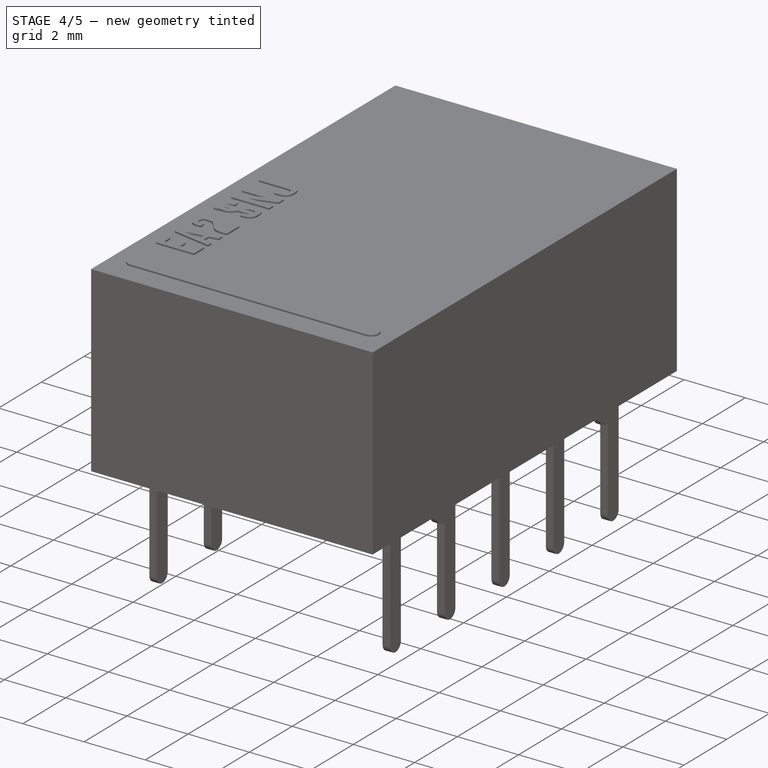
[diagram: stage 4 of 5 — iso view after this stage's code; geometry added in this stage tinted green]
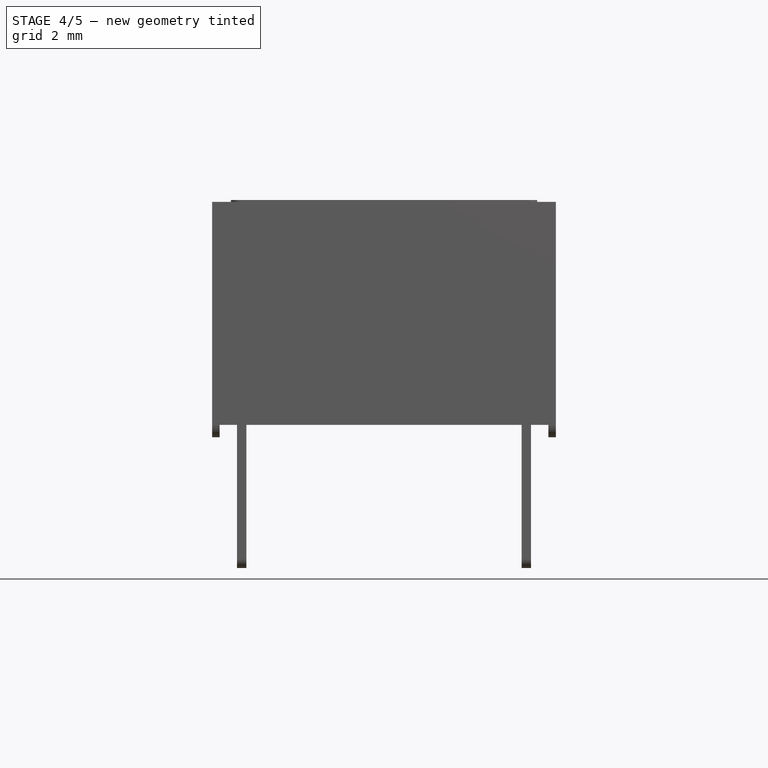
[diagram: stage 4 of 5 — front view after this stage's code; geometry added in this stage tinted green]
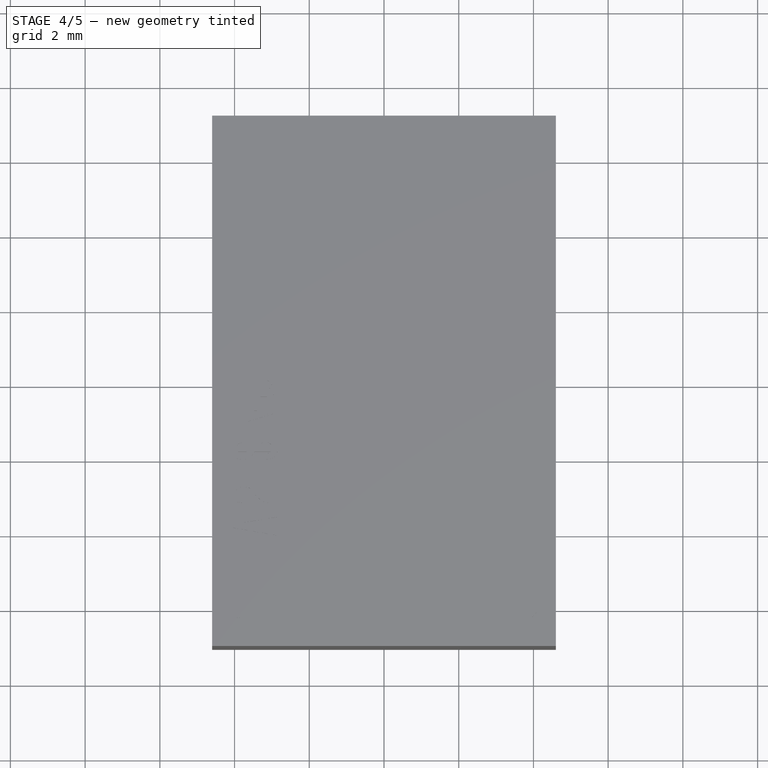
[diagram: stage 4 of 5 — top view after this stage's code; geometry added in this stage tinted green]
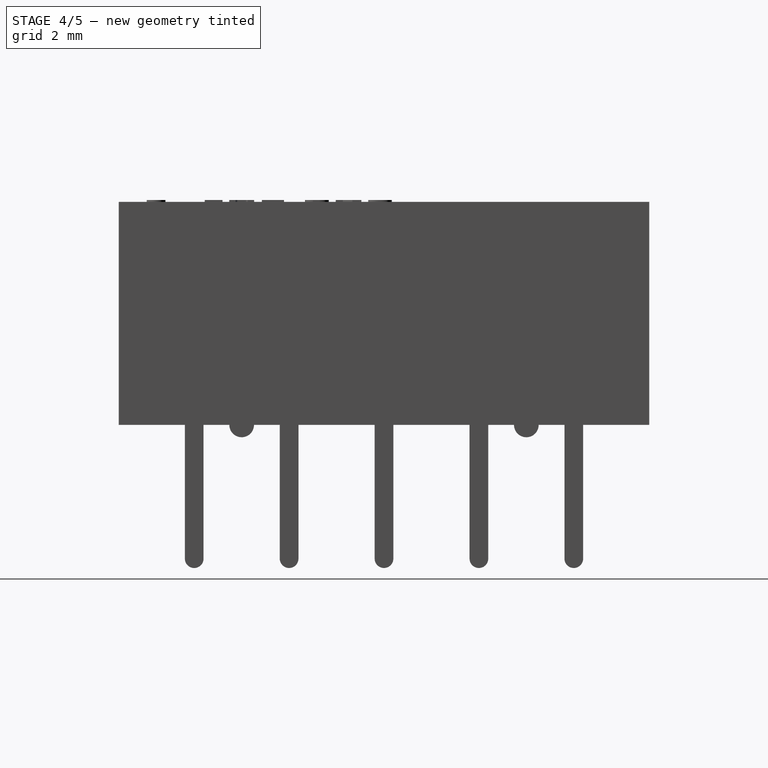
[diagram: stage 4 of 5 — right view after this stage's code; geometry added in this stage tinted green]
FEATURE [PartDesign::Body] Body  label="EA2-NU_Body"
  Group = -> [Sketch,Pad,Sketch003,Pocket,Sketch006,Pad003,MultiTransform,Mirrored,Mirrored001,Sketch007,Pocket003,Sketch008,Pad004,Sketch010,Pad006,ShapeString,Pad007]
  Origin = -> Origin
  Tip = -> Pad007
FEATURE [App::Part] Part  label="EA2-NU"
  Group = -> [Body,Sketch009,Pad005,Array]
  Origin = -> Origin001
FEATURE [PartDesign::Mirrored] Mirrored002
  MirrorPlane = -> XZ_Plane003
FEATURE [PartDesign::Mirrored] Mirrored003
  MirrorPlane = -> YZ_Plane003
FEATURE [Sketcher::SketchObject] Sketch013
  MapMode = 5
  Support = -> [XY_Plane003]
  sketch-geometry (4):
    g0: LineSegment StartX=4.6 StartY=-7.1 StartZ=0 EndX=-4.6 EndY=-7.1 EndZ=0
    g1: LineSegment StartX=-4.6 StartY=-7.1 StartZ=0 EndX=-4.6 EndY=7.1 EndZ=0
    g2: LineSegment StartX=-4.6 StartY=7.1 StartZ=0 EndX=4.6 EndY=7.1 EndZ=0
    g3: LineSegment StartX=4.6 StartY=7.1 StartZ=0 EndX=4.6 EndY=-7.1 EndZ=0
  constraints (10):
    c: Coincident(g0,g1)
    c: Coincident(g1,g2)
    c: Coincident(g2,g3)
    c: Coincident(g3,g0)
    c: Horizontal(g0)
    c: Vertical(g1)
    c: Symmetric(g1,g2,g-2)
    c: Symmetric(g2,g0,g-1)
    c: DistanceX(g2,g2) = 9.2
    c: DistanceY(g3,g3) = 14.2
FEATURE [Sketcher::SketchObject] Sketch015
  AttachmentOffset = pos=(0,0,3.81) rot=(0,0,1;0rad)
  MapMode = 5
  Placement = pos=(3.81,-1e-15,1e-15) rot=(0.57735,0.57735,0.57735;2.0944rad)
  sketch-geometry (6):
    g0: ArcOfCircle CenterX=-5.08 CenterY=-2.55 CenterZ=0 NormalX=0 NormalY=0 NormalZ=1 AngleXU=0 Radius=0.25 StartAngle=3.14159 EndAngle=6.28319
    g1: LineSegment StartX=-5.33 StartY=-2.55 StartZ=0 EndX=-5.33 EndY=0.33 EndZ=0
    g2: LineSegment StartX=-5.33 StartY=0.33 StartZ=0 EndX=-4.83 EndY=0.33 EndZ=0
    g3: LineSegment StartX=-4.83 StartY=0.33 StartZ=0 EndX=-4.83 EndY=-2.55 EndZ=0
    g4: GeomPoint X=-5.33 Y=0 Z=0
    g5: GeomPoint X=-5.08 Y=-2.8 Z=0
  constraints (16):
    c: Tangent(g0,g1) = 1.5708
    c: Coincident(g1,g2)
    c: Coincident(g2,g3)
    c: Coincident(g3,g0)
    c: Vertical(g3)
    c: Equal(g3,g1)
    c: Vertical(g1)
    c: Horizontal(g2)
    c: PointOnObject(g4,g1)
    c: PointOnObject(g4,g-1)
    c: DistanceY(g4,g1) = 0.33
    c: DistanceX(g0,g0) = 0.5
    c: DistanceX(g0,g-1) = 5.08
    c: PointOnObject(g5,g0)
    c: Vertical(g5,g0)
    c: DistanceY(g5,g-1) = 2.8
FEATURE [PartDesign::Pad] Pad009  label="MainPad001"
  Length = 6.3
  Length2 = 100
  Profile = -> Sketch013
  Type = 0
FEATURE [Sketcher::SketchObject] Sketch014
  ExternalGeometry = -> [Pad009]
  MapMode = 5
  Placement = pos=(-4.6,0,0) rot=(0.57735,-0.57735,-0.57735;2.0944rad)
  Support = -> [Pad009]
  sketch-geometry (4):
    g0: LineSegment StartX=-7.1 StartY=0 StartZ=0 EndX=7.1 EndY=0 EndZ=0
    g1: LineSegment StartX=7.1 StartY=0 StartZ=0 EndX=7.1 EndY=0.33 EndZ=0
    g2: LineSegment StartX=7.1 StartY=0.33 StartZ=0 EndX=-7.1 EndY=0.33 EndZ=0
    g3: LineSegment StartX=-7.1 StartY=0.33 StartZ=0 EndX=-7.1 EndY=0 EndZ=0
  constraints (11):
    c: Coincident(g0,g1)
    c: Coincident(g1,g2)
    c: Coincident(g2,g3)
    c: Coincident(g3,g0)
    c: Horizontal(g0)
    c: Horizontal(g2)
    c: Vertical(g1)
    c: Vertical(g3)
    c: Coincident(g0,g-3)
    c: PointOnObject(g1,g-4)
    c: DistanceY(g1,g1) = 0.33
FEATURE [PartDesign::Pocket] Pocket004  label="BottomPocket002"
  BaseFeature = -> Pad009
  Length = 5
  Length2 = 100
  Profile = -> Sketch014
  Type = 1
FEATURE [Sketcher::SketchObject] Sketch011
  MapMode = 5
  Placement = pos=(-4.6,0,0) rot=(0.57735,-0.57735,-0.57735;2.0944rad)
  Support = -> [Pocket004]
  sketch-geometry (3):
    g0: LineSegment StartX=-4.14 StartY=0.33 StartZ=0 EndX=-3.48 EndY=0.33 EndZ=0
    g1: ArcOfCircle CenterX=-3.81 CenterY=0.33 CenterZ=0 NormalX=0 NormalY=0 NormalZ=1 AngleXU=0 Radius=0.33 StartAngle=3.14159 EndAngle=6.28319
    g2: GeomPoint X=-3.81 Y=0 Z=0
  constraints (9):
    c: Horizontal(g0)
    c: DistanceX(g0,g0) = 0.66
    c: Coincident(g1,g0)
    c: Coincident(g1,g0)
    c: PointOnObject(g2,g1)
    c: PointOnObject(g2,g-1)
    c: DistanceY(g2,g0) = 0.33
    c: Tangent(g1,g-1)
    c: DistanceX(g2,g-1) = 3.81
FEATURE [PartDesign::Pad] Pad010
  Length = 0.25
  Length2 = 100
  Midplane = true
  Placement = pos=(3.81,-1e-15,1e-15) rot=(0.57735,0.57735,0.57735;2.0944rad)
  Profile = -> Sketch015
  Reversed = true
  Type = 0
FEATURE [PartDesign::Pad] Pad013  label="StandoffPad001"
  BaseFeature = -> Pocket004
  Length = 0.2
  Length2 = 100
  Profile = -> Sketch011
  Refine = true
  Reversed = true
  Type = 0
FEATURE [PartDesign::MultiTransform] MultiTransform001  label="StandoffMultiTransform001"
  BaseFeature = -> Pad013
  Originals = -> [Pad013]
  Refine = true
  Transformations = -> [Mirrored003,Mirrored002]
FEATURE [Sketcher::SketchObject] Sketch012
  ExternalGeometry = -> [MultiTransform001]
  MapMode = 5
  Placement = pos=(0,0,0.33) rot=(1,0,0;3.14159rad)
  Support = -> [MultiTransform001]
  sketch-geometry (4):
    g0: LineSegment StartX=-4.4 StartY=6.9 StartZ=0 EndX=4.4 EndY=6.9 EndZ=0
    g1: LineSegment StartX=4.4 StartY=6.9 StartZ=0 EndX=4.4 EndY=-6.9 EndZ=0
    g2: LineSegment StartX=4.4 StartY=-6.9 StartZ=0 EndX=-4.4 EndY=-6.9 EndZ=0
    g3: LineSegment StartX=-4.4 StartY=-6.9 StartZ=0 EndX=-4.4 EndY=6.9 EndZ=0
  constraints (10):
    c: Coincident(g0,g1)
    c: Coincident(g1,g2)
    c: Coincident(g2,g3)
    c: Coincident(g3,g0)
    c: Horizontal(g2)
    c: Vertical(g3)
    c: Symmetric(g0,g0,g-2)
    c: Symmetric(g0,g1,g-1)
    c: DistanceX(g0,g-4) = 0.2
    c: DistanceY(g0,g-4) = 0.2
FEATURE [PartDesign::Pocket] Pocket005  label="BottomPocket003"
  BaseFeature = -> MultiTransform001
  Length = 0.1
  Length2 = 100
  Profile = -> Sketch012
  Type = 0
FEATURE [Sketcher::SketchObject] Sketch017
  MapMode = 5
  Placement = pos=(0,0,0.43) rot=(1,0,0;3.14159rad)
  Support = -> [Pocket005]
  sketch-geometry (8):
    g0: LineSegment StartX=-1.8547 StartY=5.55085 StartZ=0 EndX=1.8547 EndY=5.55085 EndZ=0
    g1: LineSegment StartX=2.79274 StartY=4.61281 StartZ=0 EndX=2.79274 EndY=-4.61281 EndZ=0
    g2: LineSegment StartX=1.8547 StartY=-5.55085 StartZ=0 EndX=-1.8547 EndY=-5.55085 EndZ=0
    g3: LineSegment StartX=-2.79274 StartY=-4.61281 StartZ=0 EndX=-2.79274 EndY=4.61281 EndZ=0
    g4: ArcOfCircle CenterX=-1.8547 CenterY=4.61281 CenterZ=0 NormalX=0 NormalY=0 NormalZ=1 AngleXU=0 Radius=0.938044 StartAngle=1.5708 EndAngle=3.14159
    g5: ArcOfCircle CenterX=1.8547 CenterY=4.61281 CenterZ=0 NormalX=0 NormalY=0 NormalZ=1 AngleXU=0 Radius=0.938044 StartAngle=0 EndAngle=1.5708
    g6: ArcOfCircle CenterX=1.8547 CenterY=-4.61281 CenterZ=0 NormalX=0 NormalY=0 NormalZ=1 AngleXU=0 Radius=0.938044 StartAngle=4.71239 EndAngle=6.28319
    g7: ArcOfCircle CenterX=-1.8547 CenterY=-4.61281 CenterZ=0 NormalX=0 NormalY=0 NormalZ=1 AngleXU=0 Radius=0.938044 StartAngle=3.14159 EndAngle=4.71239
  constraints (15):
    c: Horizontal(g0)
    c: Horizontal(g2)
    c: Vertical(g1)
    c: Vertical(g3)
    c: Tangent(g0,g4) = 1.5708
    c: Tangent(g3,g4) = 1.5708
    c: Tangent(g0,g5) = 1.5708
    c: Tangent(g1,g5) = 1.5708
    c: Tangent(g1,g6) = 1.5708
    c: Tangent(g2,g6) = 1.5708
    c: Tangent(g2,g7) = 1.5708
    c: Tangent(g3,g7) = 1.5708
    c: Equal(g7,g6)
    c: Symmetric(g3,g1,g-2)
    c: Symmetric(g0,g2,g-1)
FEATURE [PartDesign::Pad] Pad011  label="BottomPad001"
  BaseFeature = -> Pocket005
  Length = 0.05
  Length2 = 100
  Profile = -> Sketch017
  Type = 0
FEATURE [Sketcher::SketchObject] Sketch016
  ExternalGeometry = -> [Pad011]
  MapMode = 5
  Placement = pos=(0,0,6.3) rot=(0,0,1;0rad)
  Support = -> [Pad011]
  sketch-geometry (4):
    g0: ArcOfCircle CenterX=-3.85 CenterY=-6.1 CenterZ=0 NormalX=0 NormalY=0 NormalZ=1 AngleXU=0 Radius=0.25 StartAngle=1.5708 EndAngle=4.71239
    g1: ArcOfCircle CenterX=3.85 CenterY=-6.1 CenterZ=0 NormalX=0 NormalY=0 NormalZ=1 AngleXU=0 Radius=0.25 StartAngle=4.71239 EndAngle=7.85398
    g2: LineSegment StartX=-3.85 StartY=-6.35 StartZ=0 EndX=3.85 EndY=-6.35 EndZ=0
    g3: LineSegment StartX=-3.85 StartY=-5.85 StartZ=0 EndX=3.85 EndY=-5.85 EndZ=0
  constraints (9):
    c: Tangent(g0,g3) = 1.5708
    c: Tangent(g0,g2) = -1.5708
    c: Tangent(g2,g1) = -1.5708
    c: Tangent(g3,g1) = 1.5708
    c: Horizontal(g2)
    c: Symmetric(g1,g0,g-2)
    c: DistanceY(g1,g1) = 0.5
    c: DistanceY(g-3,g0) = 1
    c: DistanceX(g-3,g0) = 0.75
FEATURE [PartDesign::Pad] Pad012  label="CoilMarkingPad001"
  BaseFeature = -> Pad011
  Length = 0.05
  Length2 = 100
  Profile = -> Sketch016
  Type = 0
FEATURE [Sketcher::SketchObject] Sketch022
  AttachmentOffset = pos=(0,0,3.81) rot=(0,0,1;0rad)
  MapMode = 5
  Placement = pos=(3.81,-1e-15,1e-15) rot=(0.57735,0.57735,0.57735;2.0944rad)
  sketch-geometry (6):
    g0: ArcOfCircle CenterX=-5.08 CenterY=-3.25 CenterZ=0 NormalX=0 NormalY=0 NormalZ=1 AngleXU=0 Radius=0.25 StartAngle=3.14159 EndAngle=6.28319
    g1: LineSegment StartX=-5.33 StartY=-3.25 StartZ=0 EndX=-5.33 EndY=0.33 EndZ=0
    g2: LineSegment StartX=-5.33 StartY=0.33 StartZ=0 EndX=-4.83 EndY=0.33 EndZ=0
    g3: LineSegment StartX=-4.83 StartY=0.33 StartZ=0 EndX=-4.83 EndY=-3.25 EndZ=0
    g4: GeomPoint X=-5.33 Y=0 Z=0
    g5: GeomPoint X=-5.08 Y=-3.5 Z=0
  constraints (16):
    c: Tangent(g0,g1) = 1.5708
    c: Coincident(g1,g2)
    c: Coincident(g2,g3)
    c: Coincident(g3,g0)
    c: Vertical(g3)
    c: Equal(g3,g1)
    c: Vertical(g1)
    c: Horizontal(g2)
    c: PointOnObject(g4,g1)
    c: PointOnObject(g4,g-1)
    c: DistanceY(g4,g1) = 0.33
    c: DistanceX(g0,g0) = 0.5
    c: DistanceX(g0,g-1) = 5.08
    c: PointOnObject(g5,g0)
    c: Vertical(g5,g0)
    c: DistanceY(g5,g-1) = 3.5
FEATURE [PartDesign::Pad] Pad015
  Length = 0.25
  Length2 = 100
  Midplane = true
  Placement = pos=(3.81,-1e-15,1e-15) rot=(0.57735,0.57735,0.57735;2.0944rad)
  Profile = -> Sketch022
  Reversed = true
  Type = 0
FEATURE [Part::FeaturePython] Array002  label="EA2-SNU_Pins"  # Draft array (typed FeaturePython)
  Angle = 360
  ArrayType = 0
  Axis = (0,0,1)
  Base = -> Pad015
  Center = (0,0,0)
  Fuse = false
  IntervalAxis = (0,0,0)
  IntervalX = (-7.62,0,0)
  IntervalY = (0,2.54,0)
  IntervalZ = (0,0,1)
  NumberPolar = 1
  NumberX = 2
  NumberY = 5
  NumberZ = 1
FEATURE [Sketcher::SketchObject] Sketch021
  ExternalGeometry = -> [Pad019]
  MapMode = 5
  Placement = pos=(0,0,5.4) rot=(0,0,1;0rad)
  Support = -> [Pad019]
  sketch-geometry (4):
    g0: ArcOfCircle CenterX=-3.85 CenterY=-6.1 CenterZ=0 NormalX=0 NormalY=0 NormalZ=1 AngleXU=0 Radius=0.25 StartAngle=1.5708 EndAngle=4.71239
    g1: ArcOfCircle CenterX=3.85 CenterY=-6.1 CenterZ=0 NormalX=0 NormalY=0 NormalZ=1 AngleXU=0 Radius=0.25 StartAngle=4.71239 EndAngle=7.85398
    g2: LineSegment StartX=-3.85 StartY=-6.35 StartZ=0 EndX=3.85 EndY=-6.35 EndZ=0
    g3: LineSegment StartX=-3.85 StartY=-5.85 StartZ=0 EndX=3.85 EndY=-5.85 EndZ=0
  constraints (9):
    c: Tangent(g0,g3) = 1.5708
    c: Tangent(g0,g2) = -1.5708
    c: Tangent(g2,g1) = -1.5708
    c: Tangent(g3,g1) = 1.5708
    c: Horizontal(g2)
    c: Symmetric(g1,g0,g-2)
    c: DistanceY(g1,g1) = 0.5
    c: DistanceY(g-3,g0) = 1
    c: DistanceX(g-3,g0) = 0.75
FEATURE [PartDesign::Pad] Pad017  label="CoilMarkingPad002"
  BaseFeature = -> Pad019
  Length = 0.05
  Length2 = 100
  Profile = -> Sketch021
  Type = 0
FEATURE [Part::Part2DObjectPython] ShapeString002  # Draft 2D object (typed FeaturePython)
  AttachmentOffset = pos=(-1,-1,0) rot=(0,0,-1;1.5708rad)
  FontFile = <userpath>/Desktop/GitHub/freecad-projects/00-fonts/coolvetica condensed rg.ttf
  MapMode = 6
  Placement = pos=(-2.85,-4.85,5.4) rot=(0,0,1;1.5708rad)
  Size = 0.75
  String = EA2 SNU
  Support = -> [Pad017]
  Tracking = 0.125
FEATURE [PartDesign::Pad] Pad018  label="ShapeStringPad002"
  BaseFeature = -> Pad017
  Length = 0.05
  Length2 = 100
  Profile = -> ShapeString002
  Type = 0
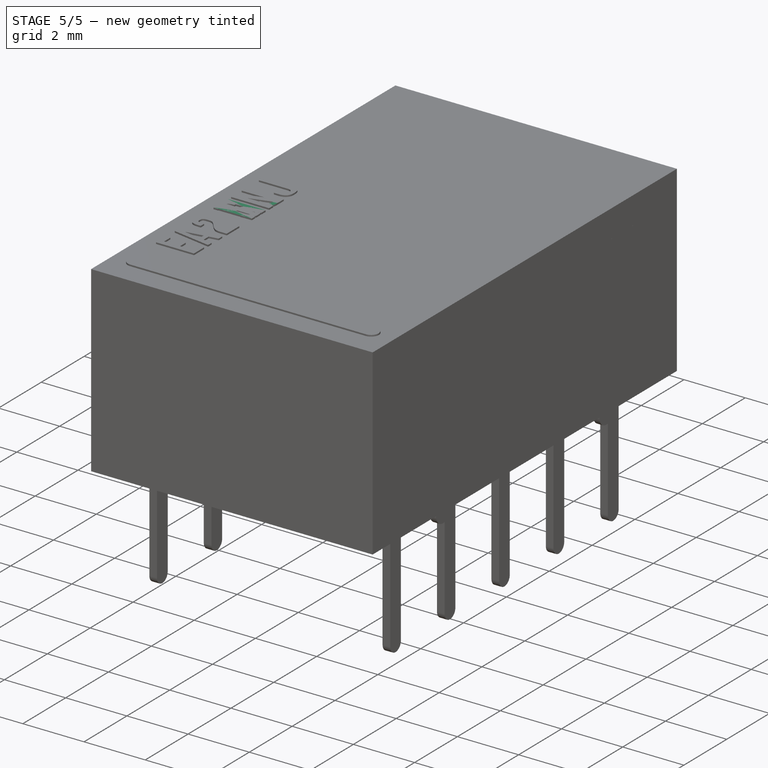
[diagram: stage 5 of 5 — iso view after this stage's code; geometry added in this stage tinted green]
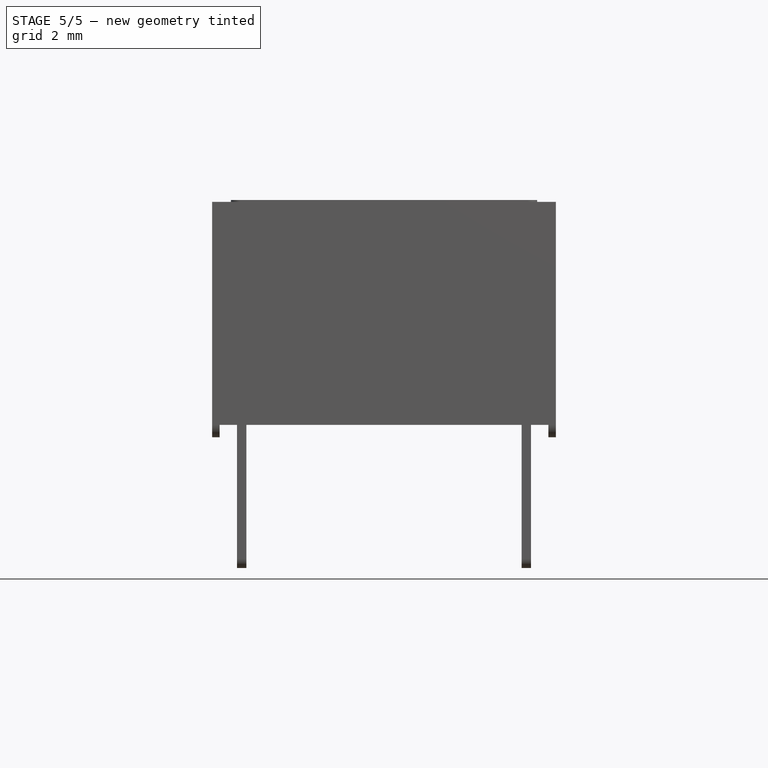
[diagram: stage 5 of 5 — front view after this stage's code; geometry added in this stage tinted green]
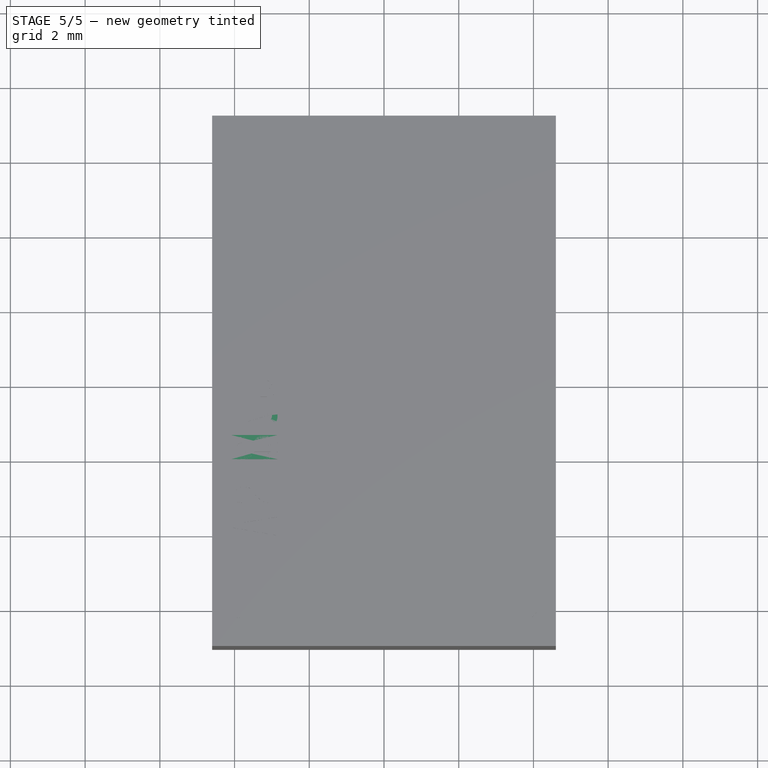
[diagram: stage 5 of 5 — top view after this stage's code; geometry added in this stage tinted green]
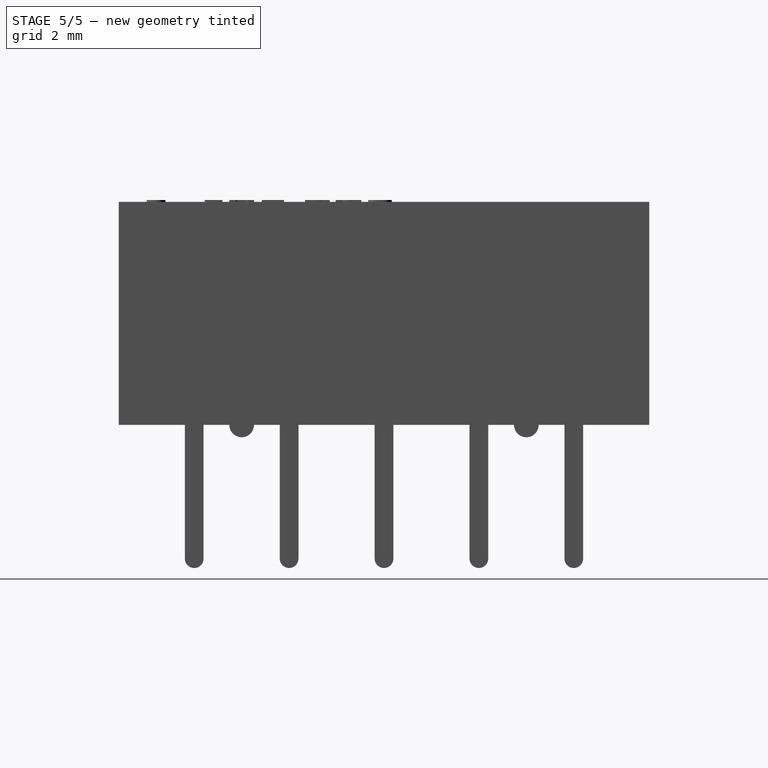
[diagram: stage 5 of 5 — right view after this stage's code; geometry added in this stage tinted green]
FEATURE [Sketcher::SketchObject] Sketch
  MapMode = 5
  Support = -> [XY_Plane]
  sketch-geometry (4):
    g0: LineSegment StartX=4.6 StartY=-7.1 StartZ=0 EndX=-4.6 EndY=-7.1 EndZ=0
    g1: LineSegment StartX=-4.6 StartY=-7.1 StartZ=0 EndX=-4.6 EndY=7.1 EndZ=0
    g2: LineSegment StartX=-4.6 StartY=7.1 StartZ=0 EndX=4.6 EndY=7.1 EndZ=0
    g3: LineSegment StartX=4.6 StartY=7.1 StartZ=0 EndX=4.6 EndY=-7.1 EndZ=0
  constraints (10):
    c: Coincident(g0,g1)
    c: Coincident(g1,g2)
    c: Coincident(g2,g3)
    c: Coincident(g3,g0)
    c: Horizontal(g0)
    c: Vertical(g1)
    c: Symmetric(g1,g2,g-2)
    c: Symmetric(g2,g0,g-1)
    c: DistanceX(g2,g2) = 9.2
    c: DistanceY(g3,g3) = 14.2
FEATURE [PartDesign::Pad] Pad  label="MainPad"
  Length = 5.4
  Length2 = 100
  Profile = -> Sketch
  Type = 0
FEATURE [Sketcher::SketchObject] Sketch003
  ExternalGeometry = -> [Pad]
  MapMode = 5
  Placement = pos=(-4.6,0,0) rot=(0.57735,-0.57735,-0.57735;2.0944rad)
  Support = -> [Pad]
  sketch-geometry (4):
    g0: LineSegment StartX=-7.1 StartY=0 StartZ=0 EndX=7.1 EndY=0 EndZ=0
    g1: LineSegment StartX=7.1 StartY=0 StartZ=0 EndX=7.1 EndY=0.33 EndZ=0
    g2: LineSegment StartX=7.1 StartY=0.33 StartZ=0 EndX=-7.1 EndY=0.33 EndZ=0
    g3: LineSegment StartX=-7.1 StartY=0.33 StartZ=0 EndX=-7.1 EndY=0 EndZ=0
  constraints (11):
    c: Coincident(g0,g1)
    c: Coincident(g1,g2)
    c: Coincident(g2,g3)
    c: Coincident(g3,g0)
    c: Horizontal(g0)
    c: Horizontal(g2)
    c: Vertical(g1)
    c: Vertical(g3)
    c: Coincident(g0,g-3)
    c: PointOnObject(g1,g-4)
    c: DistanceY(g1,g1) = 0.33
FEATURE [PartDesign::Pocket] Pocket  label="BottomPocket"
  BaseFeature = -> Pad
  Length = 5
  Length2 = 100
  Profile = -> Sketch003
  Type = 1
FEATURE [Sketcher::SketchObject] Sketch006
  MapMode = 5
  Placement = pos=(-4.6,0,0) rot=(0.57735,-0.57735,-0.57735;2.0944rad)
  Support = -> [Pocket]
  sketch-geometry (3):
    g0: LineSegment StartX=-4.14 StartY=0.33 StartZ=0 EndX=-3.48 EndY=0.33 EndZ=0
    g1: ArcOfCircle CenterX=-3.81 CenterY=0.33 CenterZ=0 NormalX=0 NormalY=0 NormalZ=1 AngleXU=0 Radius=0.33 StartAngle=3.14159 EndAngle=6.28319
    g2: GeomPoint X=-3.81 Y=0 Z=0
  constraints (9):
    c: Horizontal(g0)
    c: DistanceX(g0,g0) = 0.66
    c: Coincident(g1,g0)
    c: Coincident(g1,g0)
    c: PointOnObject(g2,g1)
    c: PointOnObject(g2,g-1)
    c: DistanceY(g2,g0) = 0.33
    c: Tangent(g1,g-1)
    c: DistanceX(g2,g-1) = 3.81
FEATURE [PartDesign::Pad] Pad003  label="StandoffPad"
  BaseFeature = -> Pocket
  Length = 0.2
  Length2 = 100
  Profile = -> Sketch006
  Refine = true
  Reversed = true
  Type = 0
FEATURE [PartDesign::Mirrored] Mirrored
  MirrorPlane = -> YZ_Plane
FEATURE [PartDesign::Mirrored] Mirrored001
  MirrorPlane = -> XZ_Plane
FEATURE [PartDesign::MultiTransform] MultiTransform  label="StandoffMultiTransform"
  BaseFeature = -> Pad003
  Originals = -> [Pad003]
  Refine = true
  Transformations = -> [Mirrored,Mirrored001]
FEATURE [Sketcher::SketchObject] Sketch007
  ExternalGeometry = -> [MultiTransform]
  MapMode = 5
  Placement = pos=(0,0,0.33) rot=(1,0,0;3.14159rad)
  Support = -> [MultiTransform]
  sketch-geometry (4):
    g0: LineSegment StartX=-4.4 StartY=6.9 StartZ=0 EndX=4.4 EndY=6.9 EndZ=0
    g1: LineSegment StartX=4.4 StartY=6.9 StartZ=0 EndX=4.4 EndY=-6.9 EndZ=0
    g2: LineSegment StartX=4.4 StartY=-6.9 StartZ=0 EndX=-4.4 EndY=-6.9 EndZ=0
    g3: LineSegment StartX=-4.4 StartY=-6.9 StartZ=0 EndX=-4.4 EndY=6.9 EndZ=0
  constraints (10):
    c: Coincident(g0,g1)
    c: Coincident(g1,g2)
    c: Coincident(g2,g3)
    c: Coincident(g3,g0)
    c: Horizontal(g2)
    c: Vertical(g3)
    c: Symmetric(g0,g0,g-2)
    c: Symmetric(g0,g1,g-1)
    c: DistanceX(g0,g-4) = 0.2
    c: DistanceY(g0,g-4) = 0.2
FEATURE [PartDesign::Pocket] Pocket003  label="BottomPocket001"
  BaseFeature = -> MultiTransform
  Length = 0.1
  Length2 = 100
  Profile = -> Sketch007
  Type = 0
FEATURE [Sketcher::SketchObject] Sketch008
  MapMode = 5
  Placement = pos=(0,0,0.43) rot=(1,0,0;3.14159rad)
  Support = -> [Pocket003]
  sketch-geometry (8):
    g0: LineSegment StartX=-1.8547 StartY=5.55085 StartZ=0 EndX=1.8547 EndY=5.55085 EndZ=0
    g1: LineSegment StartX=2.79274 StartY=4.61281 StartZ=0 EndX=2.79274 EndY=-4.61281 EndZ=0
    g2: LineSegment StartX=1.8547 StartY=-5.55085 StartZ=0 EndX=-1.8547 EndY=-5.55085 EndZ=0
    g3: LineSegment StartX=-2.79274 StartY=-4.61281 StartZ=0 EndX=-2.79274 EndY=4.61281 EndZ=0
    g4: ArcOfCircle CenterX=-1.8547 CenterY=4.61281 CenterZ=0 NormalX=0 NormalY=0 NormalZ=1 AngleXU=0 Radius=0.938044 StartAngle=1.5708 EndAngle=3.14159
    g5: ArcOfCircle CenterX=1.8547 CenterY=4.61281 CenterZ=0 NormalX=0 NormalY=0 NormalZ=1 AngleXU=0 Radius=0.938044 StartAngle=0 EndAngle=1.5708
    g6: ArcOfCircle CenterX=1.8547 CenterY=-4.61281 CenterZ=0 NormalX=0 NormalY=0 NormalZ=1 AngleXU=0 Radius=0.938044 StartAngle=4.71239 EndAngle=6.28319
    g7: ArcOfCircle CenterX=-1.8547 CenterY=-4.61281 CenterZ=0 NormalX=0 NormalY=0 NormalZ=1 AngleXU=0 Radius=0.938044 StartAngle=3.14159 EndAngle=4.71239
  constraints (15):
    c: Horizontal(g0)
    c: Horizontal(g2)
    c: Vertical(g1)
    c: Vertical(g3)
    c: Tangent(g0,g4) = 1.5708
    c: Tangent(g3,g4) = 1.5708
    c: Tangent(g0,g5) = 1.5708
    c: Tangent(g1,g5) = 1.5708
    c: Tangent(g1,g6) = 1.5708
    c: Tangent(g2,g6) = 1.5708
    c: Tangent(g2,g7) = 1.5708
    c: Tangent(g3,g7) = 1.5708
    c: Equal(g7,g6)
    c: Symmetric(g3,g1,g-2)
    c: Symmetric(g0,g2,g-1)
FEATURE [PartDesign::Pad] Pad004  label="BottomPad"
  BaseFeature = -> Pocket003
  Length = 0.05
  Length2 = 100
  Profile = -> Sketch008
  Type = 0
FEATURE [Sketcher::SketchObject] Sketch009
  AttachmentOffset = pos=(0,0,3.81) rot=(0,0,1;0rad)
  MapMode = 5
  Placement = pos=(3.81,-1e-15,1e-15) rot=(0.57735,0.57735,0.57735;2.0944rad)
  sketch-geometry (6):
    g0: ArcOfCircle CenterX=-5.08 CenterY=-3.25 CenterZ=0 NormalX=0 NormalY=0 NormalZ=1 AngleXU=0 Radius=0.25 StartAngle=3.14159 EndAngle=6.28319
    g1: LineSegment StartX=-5.33 StartY=-3.25 StartZ=0 EndX=-5.33 EndY=0.33 EndZ=0
    g2: LineSegment StartX=-5.33 StartY=0.33 StartZ=0 EndX=-4.83 EndY=0.33 EndZ=0
    g3: LineSegment StartX=-4.83 StartY=0.33 StartZ=0 EndX=-4.83 EndY=-3.25 EndZ=0
    g4: GeomPoint X=-5.33 Y=0 Z=0
    g5: GeomPoint X=-5.08 Y=-3.5 Z=0
  constraints (16):
    c: Tangent(g0,g1) = 1.5708
    c: Coincident(g1,g2)
    c: Coincident(g2,g3)
    c: Coincident(g3,g0)
    c: Vertical(g3)
    c: Equal(g3,g1)
    c: Vertical(g1)
    c: Horizontal(g2)
    c: PointOnObject(g4,g1)
    c: PointOnObject(g4,g-1)
    c: DistanceY(g4,g1) = 0.33
    c: DistanceX(g0,g0) = 0.5
    c: DistanceX(g0,g-1) = 5.08
    c: PointOnObject(g5,g0)
    c: Vertical(g5,g0)
    c: DistanceY(g5,g-1) = 3.5
FEATURE [PartDesign::Pad] Pad005
  Length = 0.25
  Length2 = 100
  Midplane = true
  Placement = pos=(3.81,-1e-15,1e-15) rot=(0.57735,0.57735,0.57735;2.0944rad)
  Profile = -> Sketch009
  Reversed = true
  Type = 0
FEATURE [Part::FeaturePython] Array  label="EA2-NU_Pins"  # Draft array (typed FeaturePython)
  Angle = 360
  ArrayType = 0
  Axis = (0,0,1)
  Base = -> Pad005
  Center = (0,0,0)
  Fuse = false
  IntervalAxis = (0,0,0)
  IntervalX = (-7.62,0,0)
  IntervalY = (0,2.54,0)
  IntervalZ = (0,0,1)
  NumberPolar = 1
  NumberX = 2
  NumberY = 5
  NumberZ = 1
FEATURE [Sketcher::SketchObject] Sketch010
  ExternalGeometry = -> [Pad004]
  MapMode = 5
  Placement = pos=(0,0,5.4) rot=(0,0,1;0rad)
  Support = -> [Pad004]
  sketch-geometry (4):
    g0: ArcOfCircle CenterX=-3.85 CenterY=-6.1 CenterZ=0 NormalX=0 NormalY=0 NormalZ=1 AngleXU=0 Radius=0.25 StartAngle=1.5708 EndAngle=4.71239
    g1: ArcOfCircle CenterX=3.85 CenterY=-6.1 CenterZ=0 NormalX=0 NormalY=0 NormalZ=1 AngleXU=0 Radius=0.25 StartAngle=4.71239 EndAngle=7.85398
    g2: LineSegment StartX=-3.85 StartY=-6.35 StartZ=0 EndX=3.85 EndY=-6.35 EndZ=0
    g3: LineSegment StartX=-3.85 StartY=-5.85 StartZ=0 EndX=3.85 EndY=-5.85 EndZ=0
  constraints (9):
    c: Tangent(g0,g3) = 1.5708
    c: Tangent(g0,g2) = -1.5708
    c: Tangent(g2,g1) = -1.5708
    c: Tangent(g3,g1) = 1.5708
    c: Horizontal(g2)
    c: Symmetric(g1,g0,g-2)
    c: DistanceY(g1,g1) = 0.5
    c: DistanceY(g-3,g0) = 1
    c: DistanceX(g-3,g0) = 0.75
FEATURE [PartDesign::Pad] Pad006  label="CoilMarkingPad"
  BaseFeature = -> Pad004
  Length = 0.05
  Length2 = 100
  Profile = -> Sketch010
  Type = 0
FEATURE [Part::Part2DObjectPython] ShapeString  # Draft 2D object (typed FeaturePython)
  AttachmentOffset = pos=(-1,-1,0) rot=(0,0,-1;1.5708rad)
  FontFile = <userpath>/Desktop/GitHub/freecad-projects/00-fonts/coolvetica condensed rg.ttf
  MapMode = 6
  Placement = pos=(-2.85,-4.85,5.4) rot=(0,0,1;1.5708rad)
  Size = 0.75
  String = EA2 NU
  Support = -> [Pad006]
  Tracking = 0.125
FEATURE [PartDesign::Pad] Pad007  label="ShapeStringPad"
  BaseFeature = -> Pad006
  Length = 0.05
  Length2 = 100
  Profile = -> ShapeString
  Type = 0
FEATURE [Part::FeaturePython] Array001  label="EA2-NJ_Pins"  # Draft array (typed FeaturePython)
  Angle = 360
  ArrayType = 0
  Axis = (0,0,1)
  Base = -> Pad010
  Center = (0,0,0)
  Fuse = false
  IntervalAxis = (0,0,0)
  IntervalX = (-7.62,0,0)
  IntervalY = (0,2.54,0)
  IntervalZ = (0,0,1)
  NumberPolar = 1
  NumberX = 2
  NumberY = 5
  NumberZ = 1
FEATURE [Part::Part2DObjectPython] ShapeString001  # Draft 2D object (typed FeaturePython)
  AttachmentOffset = pos=(-1,-1,0) rot=(0,0,-1;1.5708rad)
  FontFile = <userpath>/Desktop/GitHub/freecad-projects/00-fonts/coolvetica condensed rg.ttf
  MapMode = 6
  Placement = pos=(-2.85,-4.85,6.3) rot=(0,0,1;1.5708rad)
  Size = 0.75
  String = EA2 NJ
  Support = -> [Pad012]
  Tracking = 0.125
FEATURE [PartDesign::Pad] Pad008  label="ShapeStringPad001"
  BaseFeature = -> Pad012
  Length = 0.05
  Length2 = 100
  Profile = -> ShapeString001
  Type = 0
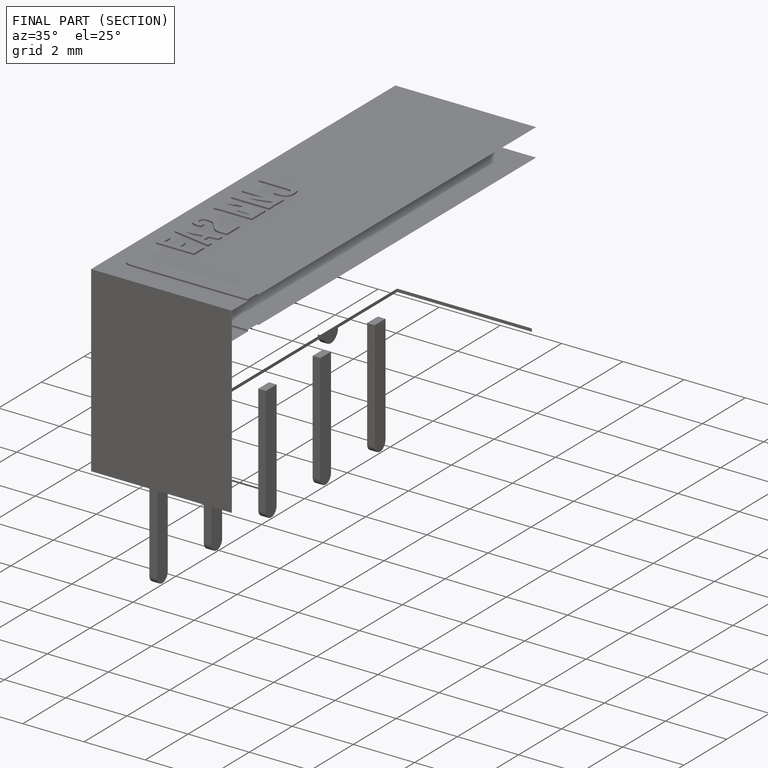
[diagram: finished part — half-section view (interior)]
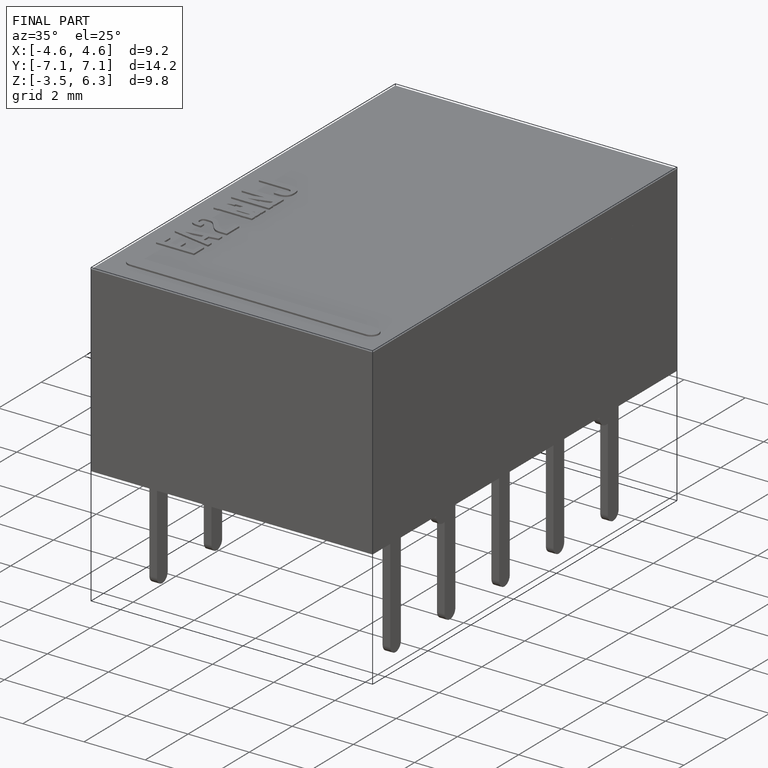
[diagram: finished part — iso view with bounding-box wireframe]
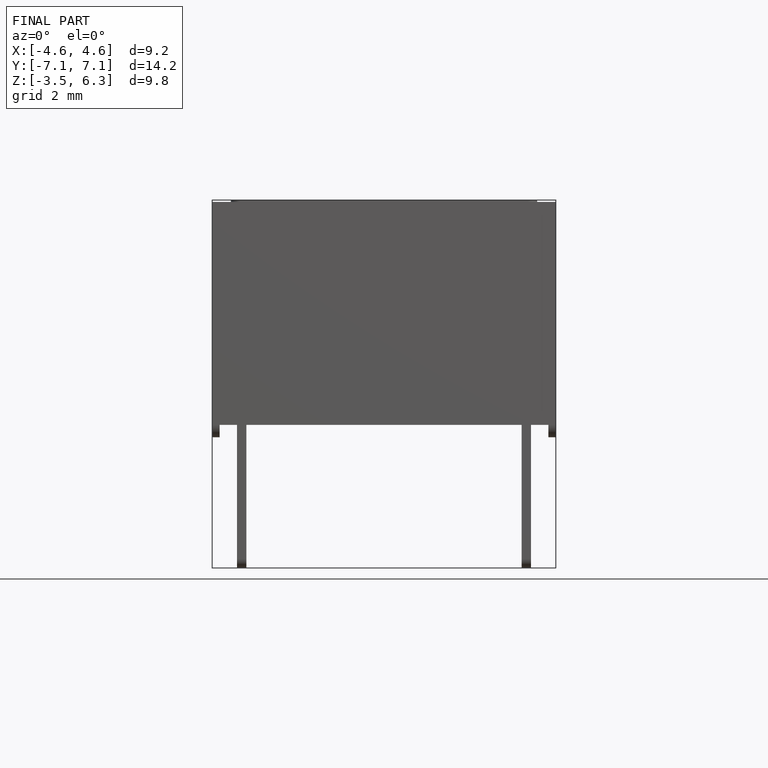
[diagram: finished part — front view with bounding-box wireframe]
